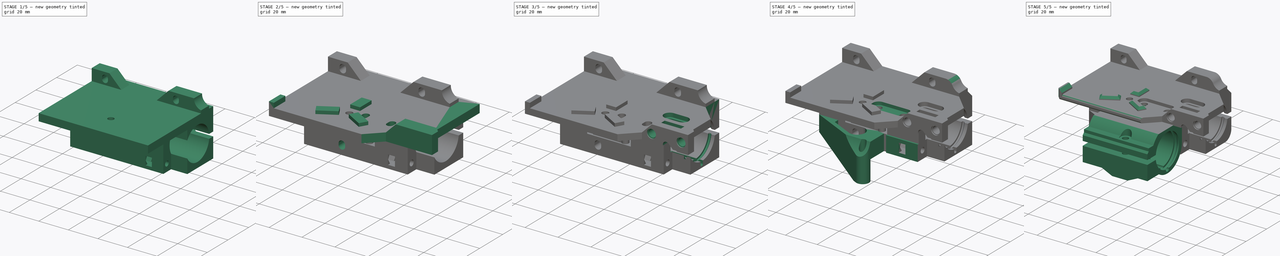
[diagram: build sequence overview — one tinted view per stage of 5, left to right]
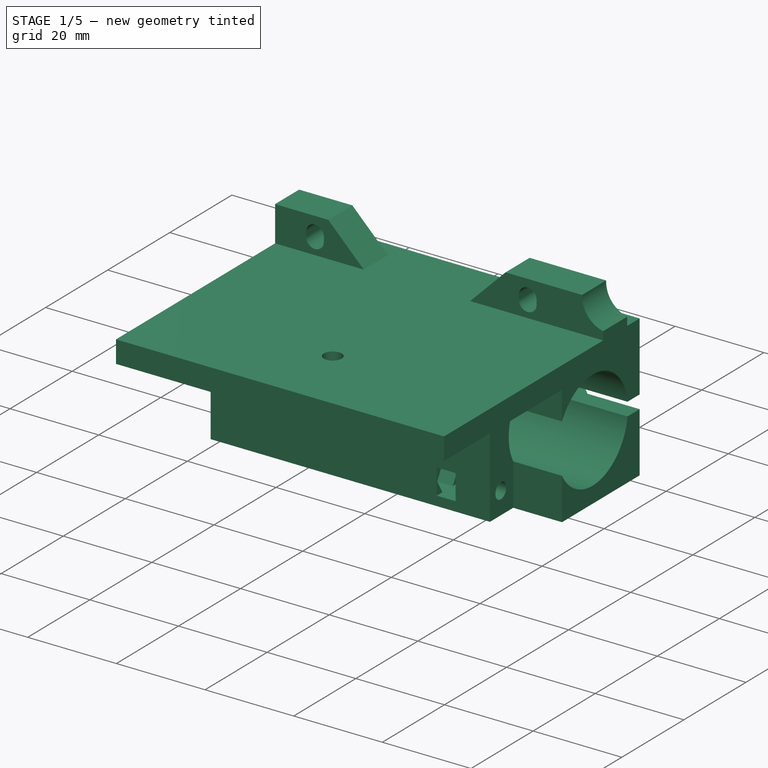
[diagram: stage 1 of 5 — iso view after this stage's code; geometry added in this stage tinted green]
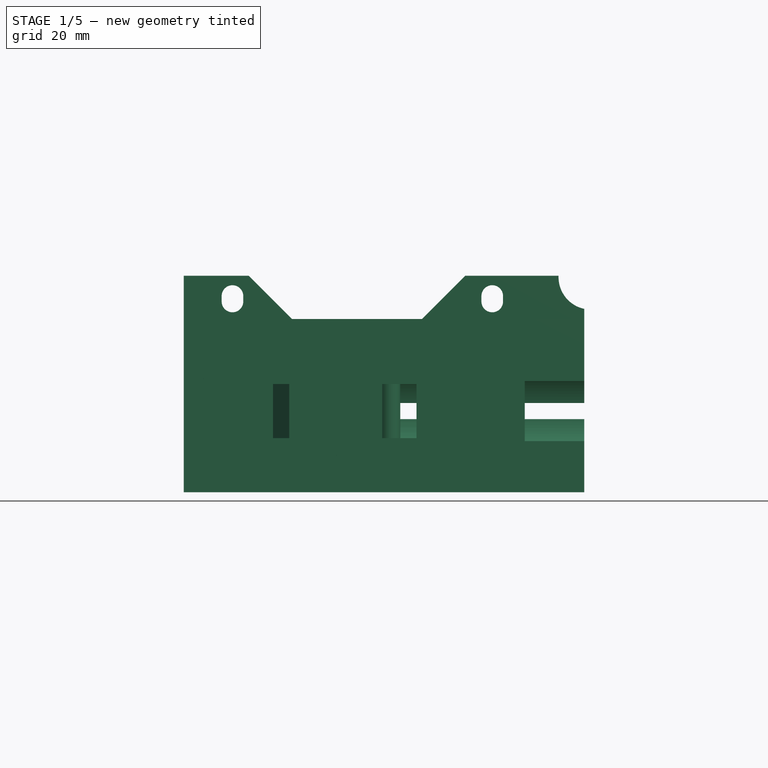
[diagram: stage 1 of 5 — front view after this stage's code; geometry added in this stage tinted green]
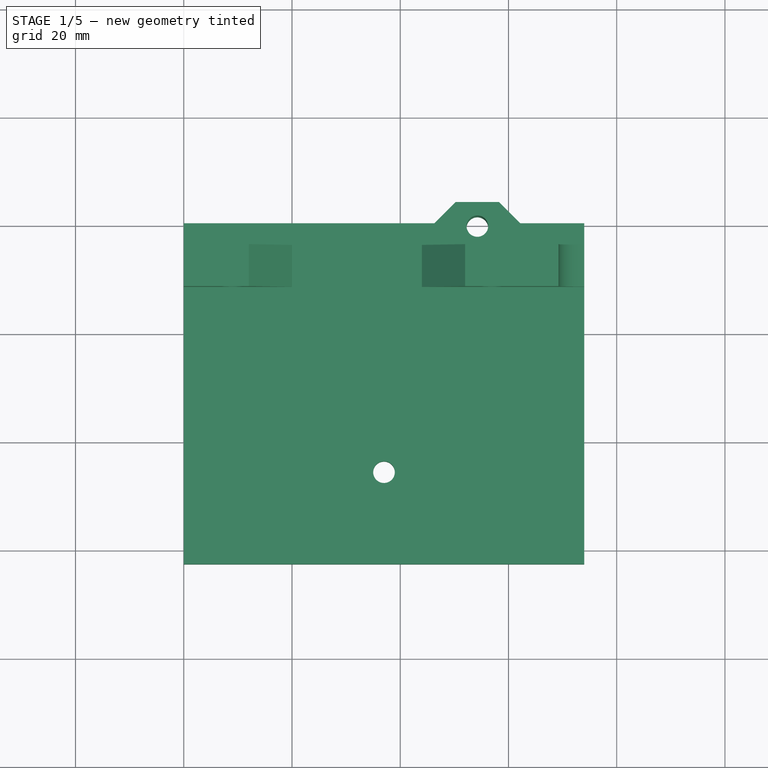
[diagram: stage 1 of 5 — top view after this stage's code; geometry added in this stage tinted green]
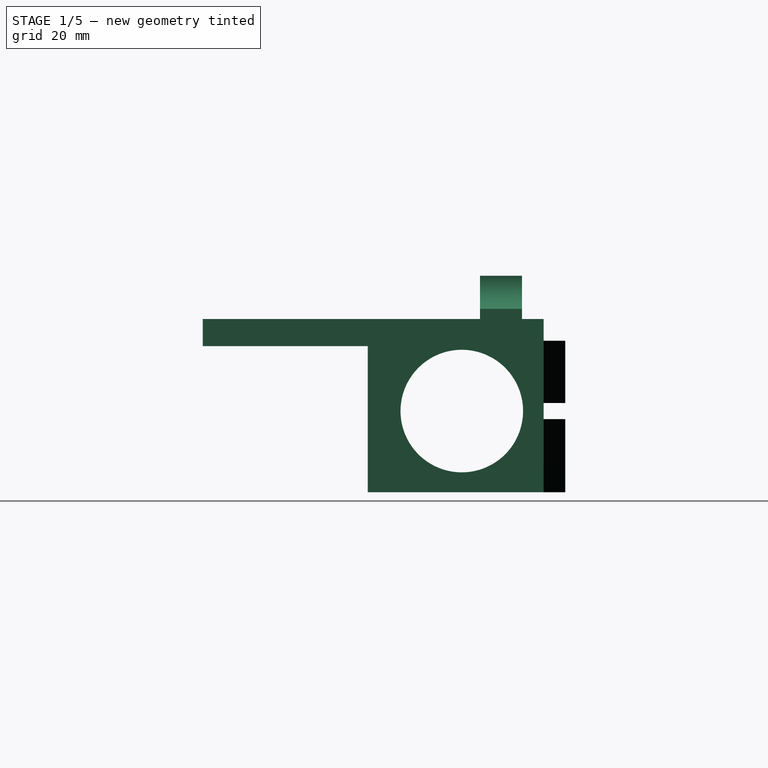
[diagram: stage 1 of 5 — right view after this stage's code; geometry added in this stage tinted green]
FCSTD DOCUMENT  (FreeCAD 0.18R4 (GitTag))
Label: x_carriage_v0.5.2
License: CreativeCommons Attribution-ShareAlike
LicenseURL: http://creativecommons.org/licenses/by-sa/4.0/
objects: Sketcher::SketchObject×48, PartDesign::Pocket×38, PartDesign::Pad×9, PartDesign::Fillet×7, PartDesign::Chamfer×7, App::FeaturePython×3, PartDesign::Groove×1, Part::FeaturePython×1, PartDesign::Body×1
note: 160 computed .brp shape members not serialized (recipe doc carries the construction recipe); baked Part::Feature solids carry a one-line shape summary decoded from their .brp

FEATURE [Sketcher::SketchObject] Sketch
  MapMode = 5
  Placement = pos=(0,0,0) rot=(0.57735,0.57735,0.57735;2.0944rad)
  Support = -> [YZ_Plane]
  sketch-geometry (11):
    g0: LineSegment StartX=4 StartY=-40 StartZ=0 EndX=4 EndY=-12 EndZ=0
    g1: LineSegment StartX=4 StartY=-12 StartZ=0 EndX=0 EndY=-12 EndZ=0
    g2: LineSegment StartX=0 StartY=-12 StartZ=0 EndX=0 EndY=0 EndZ=0
    g3: LineSegment StartX=0 StartY=0 StartZ=0 EndX=-11.75 EndY=0 EndZ=0
    g4: LineSegment StartX=-11.75 StartY=0 StartZ=0 EndX=-11.75 EndY=-8 EndZ=0
    g5: LineSegment StartX=-11.75 StartY=-8 StartZ=0 EndX=-63 EndY=-8 EndZ=0
    g6: LineSegment StartX=-63 StartY=-8 StartZ=0 EndX=-63 EndY=-13 EndZ=0
    g7: LineSegment StartX=-63 StartY=-13 StartZ=0 EndX=-32.5 EndY=-13 EndZ=0
    g8: LineSegment StartX=-32.5 StartY=-13 StartZ=0 EndX=-32.5 EndY=-40 EndZ=0
    g9: LineSegment StartX=-32.5 StartY=-40 StartZ=0 EndX=4 EndY=-40 EndZ=0
    g10: Circle CenterX=-15.125 CenterY=-25 CenterZ=0 NormalX=0 NormalY=0 NormalZ=1 AngleXU=0 Radius=11.325
  constraints (32):
    c: Coincident(g0,g1)
    c: Coincident(g1,g2)
    c: Coincident(g2,g3)
    c: Coincident(g3,g4)
    c: Coincident(g4,g5)
    c: Coincident(g5,g6)
    c: Coincident(g6,g7)
    c: Coincident(g0,g9)
    c: Coincident(g2,g-1)
    c: Horizontal(g3)
    c: Horizontal(g5)
    c: Horizontal(g7)
    c: Horizontal(g9)
    c: Horizontal(g1)
    c: Vertical(g2)
    c: Vertical(g4)
    c: Vertical(g0)
    c: Vertical(g6)
    c: Vertical(g8)
    c: DistanceX(g3,g3) = 11.75
    c: DistanceY(g4,g4) = 8
    c: DistanceX(g5,g5) = 51.25
    c: DistanceY(g6,g6) = 5
    c: DistanceY(g0,g0) = 28
    c: DistanceX(g10) = -15.125
    c: DistanceY(g10) = -25
    c: Radius(g10) = 11.325
    c: DistanceY(g0) = -40
    c: Coincident(g8,g9)
    c: DistanceX(g9,g9) = 36.5
    c: Coincident(g7,g8)
    c: DistanceX(g7,g7) = 30.5
FEATURE [PartDesign::Pad] Pad
  Length = 74
  Length2 = 100
  Placement = pos=(0,0,0) rot=(0.57735,0.57735,0.57735;2.0944rad)
  Profile = -> Sketch
  Type = 0
FEATURE [Sketcher::SketchObject] Sketch001
  MapMode = 5
  Placement = pos=(4.5164e-12,-4.512e-12,-40) rot=(0.707107,0.707107,0;3.14159rad)
  Support = -> [Pad]
  sketch-geometry (22):
    g0: Circle CenterX=-0.5 CenterY=54.25 CenterZ=0 NormalX=0 NormalY=0 NormalZ=1 AngleXU=0 Radius=2
    g1: ArcOfCircle [constr] CenterX=-50 CenterY=53.25 CenterZ=0 NormalX=0 NormalY=0 NormalZ=1 AngleXU=0 Radius=2 StartAngle=1.5708 EndAngle=4.71239
    g2: ArcOfCircle [constr] CenterX=-48 CenterY=53.25 CenterZ=0 NormalX=0 NormalY=0 NormalZ=1 AngleXU=0 Radius=2 StartAngle=4.71239 EndAngle=7.85398
    g3: LineSegment [constr] StartX=-50 StartY=51.25 StartZ=0 EndX=-48 EndY=51.25 EndZ=0
    g4: LineSegment [constr] StartX=-50 StartY=55.25 StartZ=0 EndX=-48 EndY=55.25 EndZ=0
    g5: ArcOfCircle [constr] CenterX=-50 CenterY=15 CenterZ=0 NormalX=0 NormalY=0 NormalZ=1 AngleXU=0 Radius=2 StartAngle=1.5708 EndAngle=4.71239
    g6: ArcOfCircle [constr] CenterX=-48 CenterY=15 CenterZ=0 NormalX=0 NormalY=0 NormalZ=1 AngleXU=0 Radius=2 StartAngle=4.71239 EndAngle=7.85398
    g7: LineSegment [constr] StartX=-50 StartY=13 StartZ=0 EndX=-48 EndY=13 EndZ=0
    g8: LineSegment [constr] StartX=-50 StartY=17 StartZ=0 EndX=-48 EndY=17 EndZ=0
    g9: Circle CenterX=-46 CenterY=37 CenterZ=0 NormalX=0 NormalY=0 NormalZ=1 AngleXU=0 Radius=2
    g10: LineSegment StartX=0 StartY=91.25 StartZ=0 EndX=4 EndY=91.25 EndZ=0
    g11: LineSegment StartX=4 StartY=91.25 StartZ=0 EndX=4 EndY=58.25 EndZ=0
    g12: LineSegment StartX=4 StartY=58.25 StartZ=0 EndX=0 EndY=62.25 EndZ=0
    g13: LineSegment StartX=0 StartY=62.25 StartZ=0 EndX=0 EndY=91.25 EndZ=0
    g14: LineSegment StartX=4 StartY=50.25 StartZ=0 EndX=0 EndY=46.25 EndZ=0
    g15: LineSegment StartX=0 StartY=46.25 StartZ=0 EndX=0 EndY=0 EndZ=0
    g16: LineSegment StartX=0 StartY=0 StartZ=0 EndX=4 EndY=0 EndZ=0
    g17: LineSegment StartX=4 StartY=0 StartZ=0 EndX=4 EndY=50.25 EndZ=0
    g18: LineSegment [constr] StartX=-50 StartY=53.25 StartZ=0 EndX=-48 EndY=53.25 EndZ=0
    g19: LineSegment [constr] StartX=-48 StartY=53.25 StartZ=0 EndX=-48 EndY=15 EndZ=0
    g20: LineSegment [constr] StartX=-48 StartY=15 StartZ=0 EndX=-50 EndY=15 EndZ=0
    g21: LineSegment [constr] StartX=-50 StartY=15 StartZ=0 EndX=-50 EndY=53.25 EndZ=0
  constraints (58):
    c: DistanceX(g0) = -0.5
    c: Radius(g0) = 2
    c: Tangent(g1,g4) = 1.5708
    c: Tangent(g1,g3) = -1.5708
    c: Tangent(g3,g2) = -1.5708
    c: Tangent(g4,g2) = 1.5708
    c: Horizontal(g3)
    c: Equal(g1,g2)
    c: Tangent(g5,g8) = 1.5708
    c: Tangent(g5,g7) = -1.5708
    c: Tangent(g7,g6) = -1.5708
    c: Tangent(g8,g6) = 1.5708
    c: Horizontal(g7)
    c: Equal(g5,g6)
    c: DistanceX(g9) = -46
    c: DistanceY(g9) = 37
    c: DistanceY(g2) = 53.25
    c: DistanceX(g4,g4) = 2
    c: Radius(g2) = 2
    c: DistanceX(g5) = -50
    c: DistanceY(g5) = 15
    c: DistanceX(g8,g8) = 2
    c: Radius(g6) = 2
    c: Coincident(g10,g11)
    c: Coincident(g11,g12)
    c: Coincident(g12,g13)
    c: Coincident(g13,g10)
    c: Horizontal(g10)
    c: Vertical(g11)
    c: Vertical(g13)
    c: Coincident(g14,g15)
    c: Coincident(g15,g16)
    c: Coincident(g16,g17)
    c: Coincident(g17,g14)
    c: Horizontal(g16)
    c: Vertical(g15)
    c: Vertical(g17)
    c: Coincident(g15,g-1)
    c: DistanceX(g12,g12) = 4
    c: Angle(g14) = -2.35619
    c: Angle(g12) = 2.35619
    c: PointOnObject(g10,g-2)
    c: DistanceX(g14,g14) = 4
    c: Equal(g9,g0)
    c: DistanceY(g14,g11) = 8
    c: DistanceY(g11,g11) = 33
    c: Coincident(g18,g19)
    c: Coincident(g19,g20)
    c: Coincident(g20,g21)
    c: Coincident(g21,g18)
    c: Horizontal(g18)
    c: Vertical(g19)
    c: Vertical(g21)
    c: Coincident(g5,g20)
    c: Coincident(g6,g19)
    c: Coincident(g1,g18)
    c: DistanceY(g0) = 54.25
    c: DistanceY(g0,g11) = 4
FEATURE [PartDesign::Pocket] Pocket
  BaseFeature = -> Pad
  Length = 5
  Length2 = 100
  Placement = pos=(0,0,0) rot=(0.57735,0.57735,0.57735;2.0944rad)
  Profile = -> Sketch001
  Type = 1
FEATURE [Sketcher::SketchObject] Sketch002
  MapMode = 5
  Placement = pos=(4.5164e-12,-4.512e-12,-40) rot=(0.707107,0.707107,0;3.14159rad)
  Support = -> [Pocket]
  sketch-geometry (4):
    g0: LineSegment StartX=-25 StartY=74 StartZ=0 EndX=-38 EndY=74 EndZ=0
    g1: LineSegment StartX=-38 StartY=74 StartZ=0 EndX=-38 EndY=63 EndZ=0
    g2: LineSegment StartX=-38 StartY=63 StartZ=0 EndX=-25 EndY=63 EndZ=0
    g3: LineSegment StartX=-25 StartY=63 StartZ=0 EndX=-25 EndY=74 EndZ=0
  constraints (12):
    c: Coincident(g0,g1)
    c: Coincident(g1,g2)
    c: Coincident(g2,g3)
    c: Vertical(g1)
    c: Horizontal(g2)
    c: Horizontal(g0)
    c: DistanceY(g0) = 74
    c: Vertical(g3)
    c: DistanceX(g0) = -38
    c: Coincident(g0,g3)
    c: DistanceX(g0,g0) = 13
    c: DistanceY(g3,g3) = 11
FEATURE [PartDesign::Pocket] Pocket001
  BaseFeature = -> Pocket
  Length = 27
  Length2 = 100
  Placement = pos=(0,0,0) rot=(0.57735,0.57735,0.57735;2.0944rad)
  Profile = -> Sketch002
  Type = 0
FEATURE [Sketcher::SketchObject] Sketch003
  MapMode = 5
  Placement = pos=(4.508e-13,4,-4.516e-13) rot=(0.57735,0.57735,0.57735;4.18879rad)
  Support = -> [Pocket001]
  sketch-geometry (4):
    g0: LineSegment StartX=-26.5 StartY=80 StartZ=0 EndX=-23.5 EndY=80 EndZ=0
    g1: LineSegment StartX=-23.5 StartY=80 StartZ=0 EndX=-23.5 EndY=20 EndZ=0
    g2: LineSegment StartX=-23.5 StartY=20 StartZ=0 EndX=-26.5 EndY=20 EndZ=0
    g3: LineSegment StartX=-26.5 StartY=20 StartZ=0 EndX=-26.5 EndY=80 EndZ=0
  constraints (12):
    c: Coincident(g0,g1)
    c: Coincident(g1,g2)
    c: Coincident(g2,g3)
    c: Coincident(g3,g0)
    c: Horizontal(g0)
    c: Horizontal(g2)
    c: Vertical(g1)
    c: Vertical(g3)
    c: DistanceX(g1) = -23.5
    c: DistanceX(g2,g2) = 3
    c: DistanceY(g1) = 20
    c: DistanceY(g1,g1) = 60
FEATURE [Sketcher::SketchObject] Sketch011
  MapMode = 5
  Placement = pos=(0,-1e-14,0) rot=(0.57735,0.57735,0.57735;4.18879rad)
  sketch-geometry (3):
    g0: LineSegment StartX=-40 StartY=40 StartZ=0 EndX=-40 EndY=0 EndZ=0
    g1: LineSegment StartX=-40 StartY=0 StartZ=0 EndX=-16.906 EndY=0 EndZ=0
    g2: LineSegment StartX=-40 StartY=40 StartZ=0 EndX=-16.906 EndY=0 EndZ=0
  constraints (9):
    c: PointOnObject(g1,g-1)
    c: Coincident(g0,g1)
    c: Horizontal(g1)
    c: Vertical(g0)
    c: DistanceY(g0,g0) = 40
    c: DistanceX(g0) = -40
    c: Angle(g2) = -1.0472
    c: Coincident(g0,g2)
    c: Coincident(g1,g2)
FEATURE [Sketcher::SketchObject] Sketch014
  MapMode = 5
  Placement = pos=(0,6e-15,0) rot=(0.57735,0.57735,0.57735;4.18879rad)
  sketch-geometry (21):
    g0: LineSegment StartX=0 StartY=52 StartZ=0 EndX=-8 EndY=44 EndZ=0
    g1: LineSegment StartX=-8 StartY=44 StartZ=0 EndX=-8 EndY=20 EndZ=0
    g2: LineSegment StartX=-8 StartY=20 StartZ=0 EndX=0 EndY=12 EndZ=0
    g3: LineSegment StartX=0 StartY=12 StartZ=0 EndX=0 EndY=52 EndZ=0
    g4: Circle [constr] CenterX=-4.25 CenterY=57 CenterZ=0 NormalX=0 NormalY=0 NormalZ=1 AngleXU=0 Radius=2
    g5: Circle [constr] CenterX=-4.25 CenterY=9 CenterZ=0 NormalX=0 NormalY=0 NormalZ=1 AngleXU=0 Radius=2
    g6: Circle CenterX=-0.25 CenterY=75.25 CenterZ=0 NormalX=0 NormalY=0 NormalZ=1 AngleXU=0 Radius=6
    g7: LineSegment [constr] StartX=-4.25 StartY=57 StartZ=0 EndX=-4.25 EndY=9 EndZ=0
    g8: Circle [constr] CenterX=-15.75 CenterY=19.5 CenterZ=0 NormalX=0 NormalY=0 NormalZ=1 AngleXU=0 Radius=2.35
    g9: ArcOfCircle CenterX=-4.75 CenterY=57 CenterZ=0 NormalX=0 NormalY=0 NormalZ=1 AngleXU=0 Radius=2 StartAngle=1.5708 EndAngle=4.71239
    g10: ArcOfCircle CenterX=-3.75 CenterY=57 CenterZ=0 NormalX=0 NormalY=0 NormalZ=1 AngleXU=0 Radius=2 StartAngle=4.71239 EndAngle=7.85398
    g11: LineSegment StartX=-4.75 StartY=55 StartZ=0 EndX=-3.75 EndY=55 EndZ=0
    g12: LineSegment StartX=-4.75 StartY=59 StartZ=0 EndX=-3.75 EndY=59 EndZ=0
    g13: LineSegment [constr] StartX=-4.75 StartY=57 StartZ=0 EndX=-3.75 EndY=57 EndZ=0
    g14: LineSegment [constr] StartX=-3.75 StartY=57 StartZ=0 EndX=-3.75 EndY=9 EndZ=0
    g15: LineSegment [constr] StartX=-3.75 StartY=9 StartZ=0 EndX=-4.75 EndY=9 EndZ=0
    g16: LineSegment [constr] StartX=-4.75 StartY=9 StartZ=0 EndX=-4.75 EndY=57 EndZ=0
    g17: ArcOfCircle CenterX=-4.75 CenterY=9 CenterZ=0 NormalX=0 NormalY=0 NormalZ=1 AngleXU=0 Radius=2 StartAngle=1.5708 EndAngle=4.71239
    g18: ArcOfCircle CenterX=-3.75 CenterY=9 CenterZ=0 NormalX=0 NormalY=0 NormalZ=1 AngleXU=0 Radius=2 StartAngle=4.71239 EndAngle=7.85398
    g19: LineSegment StartX=-4.75 StartY=7 StartZ=0 EndX=-3.75 EndY=7 EndZ=0
    g20: LineSegment StartX=-4.75 StartY=11 StartZ=0 EndX=-3.75 EndY=11 EndZ=0
  constraints (54):
    c: Coincident(g0,g1)
    c: Coincident(g1,g2)
    c: Coincident(g2,g3)
    c: DistanceX(g6) = -0.25
    c: Radius(g6) = 6
    c: DistanceX(g5) = -4.25
    c: DistanceY(g5) = 9
    c: Coincident(g5,g7)
    c: Coincident(g4,g7)
    c: Vertical(g7)
    c: Coincident(g0,g3)
    c: Vertical(g3)
    c: PointOnObject(g2,g-2)
    c: Radius(g5) = 2
    c: Equal(g4,g5)
    c: DistanceY(g7,g7) = 48
    c: DistanceY(g2) = 12
    c: DistanceY(g3,g3) = 40
    c: Angle(g0) = -2.35619
    c: Vertical(g1)
    c: DistanceX(g0,g0) = 8
    c: Angle(g2) = -0.785398
    c: DistanceX(g8) = -15.75
    c: Radius(g8) = 2.35
    c: DistanceY(g6) = 75.25
    c: DistanceY(g8) = 19.5
    c: Tangent(g9,g12) = 1.5708
    c: Tangent(g9,g11) = -1.5708
    c: Tangent(g11,g10) = -1.5708
    c: Tangent(g12,g10) = 1.5708
    c: Horizontal(g11)
    c: Equal(g9,g10)
    c: Coincident(g13,g14)
    c: Coincident(g14,g15)
    c: Coincident(g15,g16)
    c: Coincident(g16,g13)
    c: Horizontal(g15)
    c: Vertical(g14)
    c: Vertical(g16)
    c: PointOnObject(g5,g15)
    c: DistanceX(g5,g14) = 0.5
    c: PointOnObject(g4,g13)
    c: DistanceX(g13,g13) = 1
    c: Coincident(g9,g13)
    c: Coincident(g10,g13)
    c: Radius(g10) = 2
    c: Tangent(g17,g20) = 1.5708
    c: Tangent(g17,g19) = -1.5708
    c: Tangent(g19,g18) = -1.5708
    c: Tangent(g20,g18) = 1.5708
    c: Horizontal(g19)
    c: Coincident(g15,g17)
    c: Coincident(g18,g14)
    c: Equal(g17,g5)
FEATURE [Sketcher::SketchObject] Sketch016
  MapMode = 5
  Placement = pos=(-3.677e-12,-32.5,3.659e-12) rot=(0.57735,0.57735,-0.57735;2.0944rad)
  sketch-geometry (4):
    g0: ArcOfCircle CenterX=34 CenterY=23 CenterZ=0 NormalX=0 NormalY=0 NormalZ=1 AngleXU=0 Radius=2 StartAngle=1.5708 EndAngle=4.71239
    g1: ArcOfCircle CenterX=35 CenterY=23 CenterZ=0 NormalX=0 NormalY=0 NormalZ=1 AngleXU=0 Radius=2 StartAngle=4.71239 EndAngle=7.85398
    g2: LineSegment StartX=34 StartY=21 StartZ=0 EndX=35 EndY=21 EndZ=0
    g3: LineSegment StartX=34 StartY=25 StartZ=0 EndX=35 EndY=25 EndZ=0
  constraints (10):
    c: Tangent(g0,g3) = 1.5708
    c: Tangent(g0,g2) = -1.5708
    c: Tangent(g2,g1) = -1.5708
    c: Tangent(g3,g1) = 1.5708
    c: Horizontal(g2)
    c: Equal(g0,g1)
    c: DistanceX(g0) = 34
    c: DistanceX(g0,g1) = 1
    c: Radius(g1) = 2
    c: DistanceY(g0) = 23
FEATURE [Sketcher::SketchObject] Sketch019
  MapMode = 5
  Placement = pos=(8.87e-13,-9.02e-13,-8) rot=(0,0,-1;1.5708rad)
  sketch-geometry (16):
    g0: LineSegment [constr] StartX=41 StartY=45.6603 StartZ=0 EndX=41 EndY=28.3397 EndZ=0
    g1: LineSegment [constr] StartX=41 StartY=28.3397 StartZ=0 EndX=56 EndY=37 EndZ=0
    g2: LineSegment [constr] StartX=56 StartY=37 StartZ=0 EndX=41 EndY=45.6603 EndZ=0
    g3: Circle [constr] CenterX=46 CenterY=37 CenterZ=0 NormalX=0 NormalY=0 NormalZ=1 AngleXU=0 Radius=10
    g4: LineSegment StartX=41 StartY=40 StartZ=0 EndX=31 EndY=40 EndZ=0
    g5: LineSegment StartX=31 StartY=40 StartZ=0 EndX=31 EndY=34 EndZ=0
    g6: LineSegment StartX=31 StartY=34 StartZ=0 EndX=41 EndY=34 EndZ=0
    g7: LineSegment StartX=41 StartY=34 StartZ=0 EndX=41 EndY=40 EndZ=0
    g8: LineSegment StartX=46.2572 StartY=42.625 StartZ=0 EndX=52.1322 EndY=52.8008 EndZ=0
    g9: LineSegment StartX=52.1322 StartY=52.8008 StartZ=0 EndX=56.6788 EndY=50.1758 EndZ=0
    g10: LineSegment StartX=56.6788 StartY=50.1758 StartZ=0 EndX=50.8038 EndY=40 EndZ=0
    g11: LineSegment StartX=50.8038 StartY=40 StartZ=0 EndX=46.2572 EndY=42.625 EndZ=0
    g12: LineSegment StartX=46.2572 StartY=31.375 StartZ=0 EndX=52.1322 EndY=21.1992 EndZ=0
    g13: LineSegment StartX=52.1322 StartY=21.1992 StartZ=0 EndX=56.6788 EndY=23.8242 EndZ=0
    g14: LineSegment StartX=56.6788 StartY=23.8242 StartZ=0 EndX=50.8038 EndY=34 EndZ=0
    g15: LineSegment StartX=50.8038 StartY=34 StartZ=0 EndX=46.2572 EndY=31.375 EndZ=0
  constraints (48):
    c: Coincident(g0,g1)
    c: Coincident(g1,g2)
    c: Coincident(g2,g0)
    c: Equal(g0,g1)
    c: Equal(g0,g2)
    c: PointOnObject(g0,g3)
    c: PointOnObject(g1,g3)
    c: PointOnObject(g2,g3)
    c: Vertical(g0)
    c: DistanceX(g3) = 46
    c: DistanceY(g3) = 37
    c: Radius(g3) = 10
    c: Coincident(g4,g5)
    c: Coincident(g5,g6)
    c: Coincident(g6,g7)
    c: Coincident(g7,g4)
    c: Horizontal(g4)
    c: Horizontal(g6)
    c: Vertical(g5)
    c: Vertical(g7)
    c: Coincident(g8,g9)
    c: Coincident(g9,g10)
    c: Coincident(g10,g11)
    c: Coincident(g11,g8)
    c: Coincident(g12,g13)
    c: Coincident(g13,g14)
    c: Coincident(g14,g15)
    c: Coincident(g15,g12)
    c: PointOnObject(g10,g2)
    c: PointOnObject(g8,g2)
    c: PointOnObject(g12,g1)
    c: PointOnObject(g14,g1)
    c: Angle(g12) = -1.0472
    c: Parallel(g14,g12)
    c: Perpendicular(g13,g14)
    c: Perpendicular(g10,g11)
    c: Perpendicular(g9,g10)
    c: Perpendicular(g8,g9)
    c: Distance(g11) = 5.25
    c: Distance(g10,g1) = 6
    c: Distance(g10) = 11.75
    c: Distance(g14,g1) = 6
    c: Equal(g13,g9)
    c: Equal(g14,g10)
    c: PointOnObject(g4,g0)
    c: DistanceY(g7,g7) = 6
    c: DistanceY(g3,g4) = 3
    c: DistanceX(g4,g4) = 10
FEATURE [Sketcher::SketchObject] Sketch020
  MapMode = 5
  Placement = pos=(5.4e-14,-2.1e-14,-8) rot=(0,0,-1;1.5708rad)
  sketch-geometry (12):
    g0: ArcOfCircle CenterX=43.375 CenterY=45.25 CenterZ=0 NormalX=0 NormalY=0 NormalZ=1 AngleXU=0 Radius=2 StartAngle=1.5708 EndAngle=4.71239
    g1: ArcOfCircle CenterX=45.375 CenterY=45.25 CenterZ=0 NormalX=0 NormalY=0 NormalZ=1 AngleXU=0 Radius=2 StartAngle=4.71239 EndAngle=7.85398
    g2: LineSegment StartX=43.375 StartY=43.25 StartZ=0 EndX=45.375 EndY=43.25 EndZ=0
    g3: LineSegment StartX=43.375 StartY=47.25 StartZ=0 EndX=45.375 EndY=47.25 EndZ=0
    g4: ArcOfCircle CenterX=43.375 CenterY=61.25 CenterZ=0 NormalX=0 NormalY=0 NormalZ=1 AngleXU=0 Radius=2 StartAngle=1.5708 EndAngle=4.71239
    g5: ArcOfCircle CenterX=45.375 CenterY=61.25 CenterZ=0 NormalX=0 NormalY=0 NormalZ=1 AngleXU=0 Radius=2 StartAngle=4.71239 EndAngle=7.85398
    g6: LineSegment StartX=43.375 StartY=59.25 StartZ=0 EndX=45.375 EndY=59.25 EndZ=0
    g7: LineSegment StartX=43.375 StartY=63.25 StartZ=0 EndX=45.375 EndY=63.25 EndZ=0
    g8: LineSegment [constr] StartX=43.375 StartY=61.25 StartZ=0 EndX=45.375 EndY=61.25 EndZ=0
    g9: LineSegment [constr] StartX=45.375 StartY=61.25 StartZ=0 EndX=45.375 EndY=45.25 EndZ=0
    g10: LineSegment [constr] StartX=45.375 StartY=45.25 StartZ=0 EndX=43.375 EndY=45.25 EndZ=0
    g11: LineSegment [constr] StartX=43.375 StartY=45.25 StartZ=0 EndX=43.375 EndY=61.25 EndZ=0
  constraints (29):
    c: Tangent(g0,g3) = 1.5708
    c: Tangent(g0,g2) = -1.5708
    c: Tangent(g2,g1) = -1.5708
    c: Tangent(g3,g1) = 1.5708
    c: Horizontal(g2)
    c: Equal(g0,g1)
    c: Tangent(g4,g7) = 1.5708
    c: Tangent(g4,g6) = -1.5708
    c: Tangent(g6,g5) = -1.5708
    c: Tangent(g7,g5) = 1.5708
    c: Horizontal(g6)
    c: Equal(g4,g5)
    c: Equal(g5,g1)
    c: Radius(g1) = 2
    c: DistanceX(g4,g5) = 2
    c: DistanceX(g0,g1) = 2
    c: DistanceX(g4) = 43.375
    c: DistanceY(g4) = 61.25
    c: Coincident(g8,g9)
    c: Coincident(g9,g10)
    c: Coincident(g11,g8)
    c: Horizontal(g10)
    c: Vertical(g9)
    c: Vertical(g11)
    c: Coincident(g5,g8)
    c: Coincident(g4,g8)
    c: Coincident(g0,g11)
    c: Coincident(g10,g0)
    c: DistanceY(g9,g9) = 16
FEATURE [App::FeaturePython] circularEdgeConstraint01_mirror  label="circularEdgeConstraint01__x_carriage_v4_1_6_01"  # a2plus constraint (typed FeaturePython)
  Object1 = x_carriage_v4_1_6_01
  Object2 = x_carriage_v4_1_6_mir_01
  SubElement1 = Edge200
  SubElement2 = Edge28
  Type = circularEdge
  directionConstraint = 1
  lockRotation = false
  offset = 0
FEATURE [App::FeaturePython] circularEdgeConstraint02_mirror  label="circularEdgeConstraint02__Minii_x_carriage_V2_1_01"  # a2plus constraint (typed FeaturePython)
  Object1 = Minii_x_carriage_V2_1_01
  Object2 = Pad002
  SubElement1 = Edge247
  SubElement2 = Edge357
  Type = circularEdge
  directionConstraint = 1
  lockRotation = false
  offset = 0
FEATURE [App::FeaturePython] circularEdgeConstraint02_mirror001  label="circularEdgeConstraint02__Beefy_extruder_mount_v2_2_01"  # a2plus constraint (typed FeaturePython)
  Object1 = Beefy_extruder_mount_v2_2_01
  Object2 = Pad002
  SubElement1 = Edge187
  SubElement2 = Edge268
  Type = circularEdge
  directionConstraint = 0
  lockRotation = false
  offset = 0
FEATURE [Sketcher::SketchObject] Sketch022
  MapMode = 5
  Placement = pos=(4.432e-12,-4.512e-12,-40) rot=(0.707107,0.707107,0;3.14159rad)
  sketch-geometry (1):
    g0: Circle CenterX=-27.25 CenterY=36.5 CenterZ=0 NormalX=0 NormalY=0 NormalZ=1 AngleXU=0 Radius=2.35
  constraints (3):
    c: DistanceX(g0) = -27.25
    c: DistanceY(g0) = 36.5
    c: Radius(g0) = 2.35
FEATURE [Sketcher::SketchObject] Sketch023
  MapMode = 5
  Placement = pos=(-1.03e-13,0,0) rot=(0.57735,0.57735,-0.57735;4.18879rad)
  sketch-geometry (4):
    g0: LineSegment StartX=-63 StartY=8 StartZ=0 EndX=-53 EndY=8 EndZ=0
    g1: LineSegment StartX=-53 StartY=8 StartZ=0 EndX=-53 EndY=5 EndZ=0
    g2: LineSegment StartX=-53 StartY=5 StartZ=0 EndX=-63 EndY=5 EndZ=0
    g3: LineSegment StartX=-63 StartY=5 StartZ=0 EndX=-63 EndY=8 EndZ=0
  constraints (12):
    c: Coincident(g0,g1)
    c: Coincident(g1,g2)
    c: Coincident(g2,g3)
    c: Coincident(g3,g0)
    c: Horizontal(g0)
    c: Horizontal(g2)
    c: Vertical(g1)
    c: Vertical(g3)
    c: DistanceX(g0,g0) = 10
    c: DistanceY(g1,g1) = 3
    c: DistanceX(g0) = -63
    c: DistanceY(g0) = 8
FEATURE [Sketcher::SketchObject] Sketch026
  MapMode = 5
  Placement = pos=(9.03e-13,-9.02e-13,-8) rot=(0,0,-1;1.5708rad)
  sketch-geometry (8):
    g0: LineSegment StartX=20 StartY=65 StartZ=0 EndX=63 EndY=65 EndZ=0
    g1: LineSegment StartX=63 StartY=65 StartZ=0 EndX=63 EndY=93 EndZ=0
    g2: LineSegment StartX=63 StartY=93 StartZ=0 EndX=49 EndY=93 EndZ=0
    g3: LineSegment StartX=49 StartY=93 StartZ=0 EndX=40 EndY=84 EndZ=0
    g4: LineSegment StartX=40 StartY=84 StartZ=0 EndX=0 EndY=84 EndZ=0
    g5: LineSegment StartX=0 StartY=84 StartZ=0 EndX=0 EndY=74 EndZ=0
    g6: LineSegment StartX=0 StartY=74 StartZ=0 EndX=20 EndY=74 EndZ=0
    g7: LineSegment StartX=20 StartY=74 StartZ=0 EndX=20 EndY=65 EndZ=0
  constraints (24):
    c: Coincident(g0,g1)
    c: Coincident(g1,g2)
    c: Horizontal(g0)
    c: Horizontal(g2)
    c: Vertical(g1)
    c: DistanceY(g0) = 65
    c: DistanceX(g0) = 63
    c: DistanceX(g2,g2) = 14
    c: DistanceY(g1,g1) = 28
    c: Coincident(g2,g3)
    c: Coincident(g3,g4)
    c: PointOnObject(g4,g-2)
    c: Horizontal(g4)
    c: Coincident(g4,g5)
    c: PointOnObject(g5,g-2)
    c: Coincident(g5,g6)
    c: Horizontal(g6)
    c: Coincident(g6,g7)
    c: Coincident(g7,g0)
    c: Vertical(g7)
    c: DistanceY(g5) = 74
    c: DistanceX(g6,g6) = 20
    c: Angle(g3,g4) = 2.35619
    c: DistanceY(g5,g5) = 10
FEATURE [Sketcher::SketchObject] Sketch031
  MapMode = 5
  Placement = pos=(4.392e-12,-4.512e-12,-40) rot=(0.707107,0.707107,0;3.14159rad)
  sketch-geometry (1):
    g0: Circle CenterX=-27.25 CenterY=36.5 CenterZ=0 NormalX=0 NormalY=0 NormalZ=1 AngleXU=0 Radius=2.75
  constraints (1):
    c: Radius(g0) = 2.75
FEATURE [Sketcher::SketchObject] Sketch035
  MapMode = 5
  Placement = pos=(2.26e-13,-2.26e-13,-2) rot=(0,0,-1;1.5708rad)
  sketch-geometry (4):
    g0: LineSegment StartX=54.25 StartY=93 StartZ=0 EndX=63 EndY=93 EndZ=0
    g1: LineSegment StartX=63 StartY=93 StartZ=0 EndX=63 EndY=56.25 EndZ=0
    g2: LineSegment StartX=63 StartY=56.25 StartZ=0 EndX=54.25 EndY=65 EndZ=0
    g3: LineSegment StartX=54.25 StartY=65 StartZ=0 EndX=54.25 EndY=93 EndZ=0
  constraints (12):
    c: Coincident(g0,g1)
    c: Coincident(g1,g2)
    c: Coincident(g2,g3)
    c: Coincident(g3,g0)
    c: Horizontal(g0)
    c: Vertical(g1)
    c: Vertical(g3)
    c: DistanceX(g0) = 63
    c: DistanceY(g0) = 93
    c: DistanceX(g0,g0) = 8.75
    c: DistanceY(g3,g3) = 28
    c: Angle(g2) = 2.35619
FEATURE [Sketcher::SketchObject] Sketch036
  MapMode = 5
  Placement = pos=(-6.122e-12,-54.25,6.137e-12) rot=(0.57735,0.57735,-0.57735;2.0944rad)
  sketch-geometry (3):
    g0: LineSegment StartX=8 StartY=65 StartZ=0 EndX=2 EndY=71 EndZ=0
    g1: LineSegment StartX=2 StartY=71 StartZ=0 EndX=2 EndY=65 EndZ=0
    g2: LineSegment StartX=2 StartY=65 StartZ=0 EndX=8 EndY=65 EndZ=0
  constraints (9):
    c: Coincident(g0,g1)
    c: Vertical(g1)
    c: Coincident(g1,g2)
    c: Coincident(g2,g0)
    c: Horizontal(g2)
    c: DistanceX(g0) = 8
    c: DistanceY(g0) = 65
    c: Equal(g2,g1)
    c: DistanceY(g1,g1) = 6
FEATURE [Sketcher::SketchObject] Sketch037
  MapMode = 5
  Placement = pos=(1.478e-12,-1.468e-12,-13) rot=(0.707107,0.707107,0;3.14159rad)
  sketch-geometry (16):
    g0: LineSegment [constr] StartX=-54.25 StartY=82.75 StartZ=0 EndX=-31.25 EndY=82.75 EndZ=0
    g1: LineSegment [constr] StartX=-31.25 StartY=82.75 StartZ=0 EndX=-31.25 EndY=76.75 EndZ=0
    g2: LineSegment [constr] StartX=-31.25 StartY=76.75 StartZ=0 EndX=-54.25 EndY=76.75 EndZ=0
    g3: LineSegment [constr] StartX=-54.25 StartY=76.75 StartZ=0 EndX=-54.25 EndY=82.75 EndZ=0
    g4: LineSegment StartX=-50 StartY=85.75 StartZ=0 EndX=-47 EndY=85.75 EndZ=0
    g5: LineSegment StartX=-47 StartY=85.75 StartZ=0 EndX=-47 EndY=83.75 EndZ=0
    g6: LineSegment StartX=-47 StartY=83.75 StartZ=0 EndX=-50 EndY=83.75 EndZ=0
    g7: LineSegment StartX=-50 StartY=83.75 StartZ=0 EndX=-50 EndY=85.75 EndZ=0
    g8: LineSegment StartX=-50 StartY=75.75 StartZ=0 EndX=-47 EndY=75.75 EndZ=0
    g9: LineSegment StartX=-47 StartY=75.75 StartZ=0 EndX=-47 EndY=73.75 EndZ=0
    g10: LineSegment StartX=-47 StartY=73.75 StartZ=0 EndX=-50 EndY=73.75 EndZ=0
    g11: LineSegment StartX=-50 StartY=73.75 StartZ=0 EndX=-50 EndY=75.75 EndZ=0
    g12: LineSegment [constr] StartX=-50 StartY=83.75 StartZ=0 EndX=-47 EndY=83.75 EndZ=0
    g13: LineSegment [constr] StartX=-47 StartY=83.75 StartZ=0 EndX=-47 EndY=75.75 EndZ=0
    g14: LineSegment [constr] StartX=-47 StartY=75.75 StartZ=0 EndX=-50 EndY=75.75 EndZ=0
    g15: LineSegment [constr] StartX=-50 StartY=75.75 StartZ=0 EndX=-50 EndY=83.75 EndZ=0
  constraints (45):
    c: Coincident(g0,g1)
    c: Coincident(g1,g2)
    c: Coincident(g2,g3)
    c: Coincident(g3,g0)
    c: Horizontal(g0)
    c: Horizontal(g2)
    c: Vertical(g1)
    c: Vertical(g3)
    c: DistanceX(g2) = -54.25
    c: DistanceY(g3,g3) = 6
    c: DistanceX(g0,g0) = 23
    c: Coincident(g4,g5)
    c: Coincident(g5,g6)
    c: Coincident(g6,g7)
    c: Coincident(g7,g4)
    c: Horizontal(g4)
    c: Horizontal(g6)
    c: Vertical(g5)
    c: Vertical(g7)
    c: Coincident(g8,g9)
    c: Coincident(g9,g10)
    c: Coincident(g10,g11)
    c: Coincident(g11,g8)
    c: Horizontal(g8)
    c: Horizontal(g10)
    c: Vertical(g9)
    c: Vertical(g11)
    c: Equal(g6,g8)
    c: Equal(g11,g7)
    c: Coincident(g12,g13)
    c: Coincident(g13,g14)
    c: Coincident(g14,g15)
    c: Coincident(g15,g12)
    c: Horizontal(g14)
    c: Vertical(g13)
    c: Vertical(g15)
    c: Coincident(g8,g14)
    c: Coincident(g5,g12)
    c: Coincident(g6,g12)
    c: DistanceX(g4,g4) = 3
    c: DistanceY(g5,g5) = 2
    c: DistanceY(g8,g2) = 1
    c: DistanceY(g0,g5) = 1
    c: DistanceX(g6) = -50
    c: DistanceY(g2) = 76.75
FEATURE [Sketcher::SketchObject] Sketch038
  MapMode = 5
  Placement = pos=(2.28e-13,-2.26e-13,-2) rot=(0,0,-1;1.5708rad)
  sketch-geometry (6):
    g0: LineSegment StartX=46 StartY=90 StartZ=0 EndX=46 EndY=65 EndZ=0
    g1: LineSegment StartX=46 StartY=65 StartZ=0 EndX=20 EndY=65 EndZ=0
    g2: LineSegment StartX=20 StartY=65 StartZ=0 EndX=20 EndY=74 EndZ=0
    g3: LineSegment StartX=20 StartY=74 StartZ=0 EndX=0 EndY=74 EndZ=0
    g4: LineSegment StartX=0 StartY=74 StartZ=0 EndX=0 EndY=90 EndZ=0
    g5: LineSegment StartX=0 StartY=90 StartZ=0 EndX=46 EndY=90 EndZ=0
  constraints (18):
    c: Vertical(g0)
    c: Horizontal(g1)
    c: DistanceX(g1) = 20
    c: DistanceY(g1) = 65
    c: DistanceY(g1,g0) = 25
    c: Coincident(g0,g1)
    c: Coincident(g1,g2)
    c: Vertical(g2)
    c: Coincident(g2,g3)
    c: PointOnObject(g3,g-2)
    c: Horizontal(g3)
    c: Coincident(g3,g4)
    c: PointOnObject(g4,g-2)
    c: Coincident(g4,g5)
    c: Coincident(g5,g0)
    c: Horizontal(g5)
    c: DistanceY(g2,g2) = 9
    c: DistanceX(g1,g1) = 26
FEATURE [Sketcher::SketchObject] Sketch039
  MapMode = 5
  Placement = pos=(-5.651e-12,-50,5.649e-12) rot=(0.57735,0.57735,0.57735;4.18879rad)
  sketch-geometry (8):
    g0: LineSegment StartX=-11 StartY=85.75 StartZ=0 EndX=-2 EndY=85.75 EndZ=0
    g1: LineSegment StartX=-2 StartY=85.75 StartZ=0 EndX=-2 EndY=73.75 EndZ=0
    g2: LineSegment StartX=-2 StartY=73.75 StartZ=0 EndX=-11 EndY=73.75 EndZ=0
    g3: LineSegment StartX=-11 StartY=73.75 StartZ=0 EndX=-11 EndY=75.75 EndZ=0
    g4: LineSegment StartX=-11 StartY=75.75 StartZ=0 EndX=-4 EndY=75.75 EndZ=0
    g5: LineSegment StartX=-4 StartY=75.75 StartZ=0 EndX=-4 EndY=83.75 EndZ=0
    g6: LineSegment StartX=-4 StartY=83.75 StartZ=0 EndX=-11 EndY=83.75 EndZ=0
    g7: LineSegment StartX=-11 StartY=83.75 StartZ=0 EndX=-11 EndY=85.75 EndZ=0
  constraints (24):
    c: Horizontal(g0)
    c: Coincident(g0,g1)
    c: Vertical(g1)
    c: Coincident(g1,g2)
    c: Horizontal(g2)
    c: Coincident(g2,g3)
    c: Vertical(g3)
    c: Coincident(g3,g4)
    c: Coincident(g4,g5)
    c: Vertical(g5)
    c: Coincident(g5,g6)
    c: Coincident(g6,g7)
    c: Coincident(g7,g0)
    c: Vertical(g7)
    c: Horizontal(g4)
    c: DistanceX(g2) = -11
    c: DistanceY(g2) = 73.75
    c: DistanceY(g3,g3) = 2
    c: Equal(g3,g7)
    c: Horizontal(g6)
    c: DistanceY(g5,g5) = 8
    c: Equal(g6,g4)
    c: DistanceX(g0,g0) = 9
    c: DistanceX(g6,g6) = 7
FEATURE [Sketcher::SketchObject] Sketch042
  MapMode = 5
  Placement = pos=(-6.137e-12,-54.25,6.125e-12) rot=(0.57735,0.57735,-0.57735;2.0944rad)
  sketch-geometry (3):
    g0: Circle CenterX=7.25 CenterY=88.75 CenterZ=0 NormalX=0 NormalY=0 NormalZ=1 AngleXU=0 Radius=2.75
    g1: Circle CenterX=7.25 CenterY=70.75 CenterZ=0 NormalX=0 NormalY=0 NormalZ=1 AngleXU=0 Radius=2.75
    g2: LineSegment [constr] StartX=7.25 StartY=88.75 StartZ=0 EndX=7.25 EndY=70.75 EndZ=0
  constraints (8):
    c: Radius(g1) = 2.75
    c: Equal(g1,g0)
    c: Coincident(g2,g0)
    c: Coincident(g2,g1)
    c: Vertical(g2)
    c: DistanceX(g0) = 7.25
    c: DistanceY(g0) = 88.75
    c: DistanceY(g2,g2) = 18
FEATURE [PartDesign::Pocket] Pocket002
  BaseFeature = -> Pocket001
  Length = 11
  Length2 = 100
  Placement = pos=(0,0,0) rot=(0.57735,0.57735,0.57735;2.0944rad)
  Profile = -> Sketch003
  Refine = true
  Type = 0
FEATURE [Sketcher::SketchObject] Sketch004
  MapMode = 5
  Placement = pos=(-3.6624e-12,-32.5,3.6696e-12) rot=(0.57735,0.57735,-0.57735;2.0944rad)
  Support = -> [Pocket002]
  sketch-geometry (4):
    g0: LineSegment StartX=32.125 StartY=55.25 StartZ=0 EndX=37.875 EndY=55.25 EndZ=0
    g1: LineSegment StartX=37.875 StartY=55.25 StartZ=0 EndX=37.875 EndY=51 EndZ=0
    g2: LineSegment StartX=32.125 StartY=55.25 StartZ=0 EndX=32.125 EndY=51 EndZ=0
    g3: LineSegment StartX=32.125 StartY=51 StartZ=0 EndX=37.875 EndY=51 EndZ=0
  constraints (12):
    c: Coincident(g0,g1)
    c: Horizontal(g0)
    c: Vertical(g1)
    c: DistanceX(g1) = 37.875
    c: DistanceY(g1) = 51
    c: DistanceX(g0,g0) = 5.75
    c: DistanceY(g1,g1) = 4.25
    c: Coincident(g1,g3)
    c: Coincident(g2,g3)
    c: Horizontal(g3)
    c: Vertical(g2)
    c: Coincident(g0,g2)
FEATURE [PartDesign::Pocket] Pocket003
  BaseFeature = -> Pocket002
  Length = 7.5
  Length2 = 100
  Placement = pos=(0,0,0) rot=(0.57735,0.57735,0.57735;2.0944rad)
  Profile = -> Sketch004
  Refine = true
  Type = 0
FEATURE [Sketcher::SketchObject] Sketch005
  MapMode = 5
  Placement = pos=(74,-8.3323e-12,8.3487e-12) rot=(0.57735,0.57735,0.57735;2.0944rad)
  Support = -> [Pocket003]
  sketch-geometry (2):
    g0: Circle [constr] CenterX=-29 CenterY=-17 CenterZ=0 NormalX=0 NormalY=0 NormalZ=1 AngleXU=0 Radius=1.75
    g1: Circle CenterX=-29 CenterY=-35 CenterZ=0 NormalX=0 NormalY=0 NormalZ=1 AngleXU=0 Radius=1.75
  constraints (6):
    c: DistanceX(g0) = -29
    c: DistanceY(g0) = -17
    c: DistanceX(g1,g0) = 0
    c: DistanceY(g1,g0) = 18
    c: Radius(g1) = 1.75
    c: Equal(g1,g0)
FEATURE [PartDesign::Pocket] Pocket004
  BaseFeature = -> Pocket003
  Length = 30
  Length2 = 100
  Placement = pos=(0,0,0) rot=(0.57735,0.57735,0.57735;2.0944rad)
  Profile = -> Sketch005
  Refine = true
  Type = 0
FEATURE [Sketcher::SketchObject] Sketch006
  MapMode = 5
  Placement = pos=(44,-4.9935e-12,4.9469e-12) rot=(0.57735,0.57735,0.57735;2.0944rad)
  Support = -> [Pocket004]
  sketch-geometry (14):
    g0: LineSegment [constr] StartX=-25.65 StartY=-17 StartZ=0 EndX=-27.325 EndY=-14.0988 EndZ=0
    g1: LineSegment [constr] StartX=-27.325 StartY=-14.0988 StartZ=0 EndX=-30.675 EndY=-14.0988 EndZ=0
    g2: LineSegment [constr] StartX=-30.675 StartY=-14.0988 StartZ=0 EndX=-32.35 EndY=-17 EndZ=0
    g3: LineSegment [constr] StartX=-32.35 StartY=-17 StartZ=0 EndX=-30.675 EndY=-19.9012 EndZ=0
    g4: LineSegment [constr] StartX=-30.675 StartY=-19.9012 StartZ=0 EndX=-27.325 EndY=-19.9012 EndZ=0
    g5: LineSegment [constr] StartX=-27.325 StartY=-19.9012 StartZ=0 EndX=-25.65 EndY=-17 EndZ=0
    g6: Circle [constr] CenterX=-29 CenterY=-17 CenterZ=0 NormalX=0 NormalY=0 NormalZ=1 AngleXU=0 Radius=3.35
    g7: LineSegment StartX=-25.65 StartY=-35 StartZ=0 EndX=-27.325 EndY=-32.0988 EndZ=0
    g8: LineSegment StartX=-27.325 StartY=-32.0988 StartZ=0 EndX=-30.675 EndY=-32.0988 EndZ=0
    g9: LineSegment StartX=-30.675 StartY=-32.0988 StartZ=0 EndX=-32.35 EndY=-35 EndZ=0
    g10: LineSegment StartX=-32.35 StartY=-35 StartZ=0 EndX=-30.675 EndY=-37.9012 EndZ=0
    g11: LineSegment StartX=-30.675 StartY=-37.9012 StartZ=0 EndX=-27.325 EndY=-37.9012 EndZ=0
    g12: LineSegment StartX=-27.325 StartY=-37.9012 StartZ=0 EndX=-25.65 EndY=-35 EndZ=0
    g13: Circle [constr] CenterX=-29 CenterY=-35 CenterZ=0 NormalX=0 NormalY=0 NormalZ=1 AngleXU=0 Radius=3.35
  constraints (34):
    c: Coincident(g0,g1)
    c: Coincident(g1,g2)
    c: Coincident(g2,g3)
    c: Coincident(g3,g4)
    c: Coincident(g4,g5)
    c: Coincident(g5,g0)
    c: Equal(g0, g1-g5) x5
    c: PointOnObject(g0,g6)
    c: PointOnObject(g1,g6)
    c: PointOnObject(g2,g6)
    c: PointOnObject(g3,g6)
    c: PointOnObject(g4,g6)
    c: PointOnObject(g5,g6)
    c: Coincident(g7,g8)
    c: Coincident(g8,g9)
    c: Coincident(g9,g10)
    c: Coincident(g10,g11)
    c: Coincident(g11,g12)
    c: Coincident(g12,g7)
    c: Equal(g7, g8-g12) x5
    c: PointOnObject(g7,g13)
    c: PointOnObject(g8,g13)
    c: PointOnObject(g9,g13)
    c: PointOnObject(g10,g13)
    c: PointOnObject(g11,g13)
    c: PointOnObject(g12,g13)
    c: DistanceX(g6) = -29
    c: DistanceY(g6) = -17
    c: Horizontal(g1)
    c: Radius(g6) = 3.35
    c: DistanceX(g13,g6) = 0
    c: DistanceY(g13,g6) = 18
    c: Equal(g13,g6)
    c: Horizontal(g8)
FEATURE [PartDesign::Pocket] Pocket005
  BaseFeature = -> Pocket004
  Length = 3
  Length2 = 7
  Placement = pos=(0,0,0) rot=(0.57735,0.57735,0.57735;2.0944rad)
  Profile = -> Sketch006
  Refine = true
  Type = 4
FEATURE [Sketcher::SketchObject] Sketch008
  MapMode = 5
  Placement = pos=(4.5164e-12,-4.512e-12,-40) rot=(0.707107,0.707107,0;3.14159rad)
  Support = -> [Pocket005]
  sketch-geometry (7):
    g0: LineSegment StartX=-3.40119 StartY=52.575 StartZ=0 EndX=-0.5 EndY=50.9 EndZ=0
    g1: LineSegment StartX=-0.5 StartY=50.9 StartZ=0 EndX=2.40119 EndY=52.575 EndZ=0
    g2: LineSegment StartX=2.40119 StartY=52.575 StartZ=0 EndX=2.40119 EndY=55.925 EndZ=0
    g3: LineSegment StartX=2.40119 StartY=55.925 StartZ=0 EndX=-0.5 EndY=57.6 EndZ=0
    g4: LineSegment StartX=-0.5 StartY=57.6 StartZ=0 EndX=-3.40119 EndY=55.925 EndZ=0
    g5: LineSegment StartX=-3.40119 StartY=55.925 StartZ=0 EndX=-3.40119 EndY=52.575 EndZ=0
    g6: Circle [constr] CenterX=-0.5 CenterY=54.25 CenterZ=0 NormalX=0 NormalY=0 NormalZ=1 AngleXU=0 Radius=3.35
  constraints (17):
    c: Coincident(g0,g1)
    c: Coincident(g1,g2)
    c: Coincident(g2,g3)
    c: Coincident(g3,g4)
    c: Coincident(g4,g5)
    c: Coincident(g5,g0)
    c: Equal(g0, g1-g5) x5
    c: PointOnObject(g0,g6)
    c: PointOnObject(g1,g6)
    c: PointOnObject(g2,g6)
    c: PointOnObject(g3,g6)
    c: PointOnObject(g4,g6)
    c: PointOnObject(g5,g6)
    c: DistanceX(g6) = -0.5
    c: Vertical(g5)
    c: Radius(g6) = 3.35
    c: DistanceY(g6) = 54.25
FEATURE [PartDesign::Pocket] Pocket006
  BaseFeature = -> Pocket005
  Length = 8
  Length2 = 5
  Placement = pos=(0,0,0) rot=(0.57735,0.57735,0.57735;2.0944rad)
  Profile = -> Sketch008
  Refine = true
  Type = 4
FEATURE [PartDesign::Pocket] Pocket007
  BaseFeature = -> Pocket006
  Length = 25
  Length2 = 100
  Placement = pos=(0,0,0) rot=(0.57735,0.57735,0.57735;2.0944rad)
  Profile = -> Sketch011
  Refine = true
  Type = 0
FEATURE [PartDesign::Pocket] Pocket008
  BaseFeature = -> Pocket007
  Length = 16
  Length2 = 100
  Placement = pos=(0,0,0) rot=(0.57735,0.57735,0.57735;2.0944rad)
  Profile = -> Sketch014
  Refine = true
  Type = 0
FEATURE [Sketcher::SketchObject] Sketch043
  MapMode = 5
  Placement = pos=(0,0,0) rot=(0.57735,0.57735,-0.57735;4.18879rad)
  Support = -> [Pocket008]
  sketch-geometry (4):
    g0: LineSegment StartX=-28 StartY=30 StartZ=0 EndX=-25 EndY=30 EndZ=0
    g1: LineSegment StartX=-25 StartY=30 StartZ=0 EndX=-25 EndY=20 EndZ=0
    g2: LineSegment StartX=-25 StartY=20 StartZ=0 EndX=-28 EndY=20 EndZ=0
    g3: LineSegment StartX=-28 StartY=20 StartZ=0 EndX=-28 EndY=30 EndZ=0
  constraints (12):
    c: Coincident(g0,g1)
    c: Coincident(g1,g2)
    c: Coincident(g2,g3)
    c: Coincident(g3,g0)
    c: Horizontal(g0)
    c: Horizontal(g2)
    c: Vertical(g1)
    c: Vertical(g3)
    c: DistanceX(g2) = -28
    c: DistanceY(g2) = 20
    c: DistanceY(g3,g3) = 10
    c: DistanceX(g0,g0) = 3
FEATURE [PartDesign::Pocket] Pocket009
  BaseFeature = -> Pocket008
  Length = 34
  Length2 = 100
  Placement = pos=(0,0,0) rot=(0.57735,0.57735,0.57735;2.0944rad)
  Profile = -> Sketch043
  Refine = true
  Type = 0
FEATURE [Sketcher::SketchObject] Sketch010
  ExternalGeometry = -> [Pocket009]
  MapMode = 5
  Placement = pos=(2.266e-12,-2.26e-12,-20) rot=(0.707107,0.707107,0;3.14159rad)
  Support = -> [Pocket009]
  sketch-geometry (17):
    g0: ArcOfCircle CenterX=-30 CenterY=38 CenterZ=0 NormalX=0 NormalY=0 NormalZ=1 AngleXU=0 Radius=2 StartAngle=-6.2e-15 EndAngle=3.86433
    g1: LineSegment StartX=-32.5 StartY=43 StartZ=0 EndX=-30.2865 EndY=43 EndZ=0
    g2: LineSegment StartX=-32.5 StartY=43 StartZ=0 EndX=-32.5 EndY=16.5 EndZ=0
    g3: LineSegment [constr] StartX=-28 StartY=38 StartZ=0 EndX=-25.2865 EndY=38 EndZ=0
    g4: LineSegment StartX=-31.5 StartY=19.5 StartZ=0 EndX=-28 EndY=16 EndZ=0
    g5: LineSegment StartX=-28 StartY=16 StartZ=0 EndX=-28 EndY=0 EndZ=0
    g6: LineSegment StartX=-29 StartY=13 StartZ=0 EndX=-32.5 EndY=16.5 EndZ=0
    g7: LineSegment StartX=-29 StartY=13 StartZ=0 EndX=-29 EndY=0 EndZ=0
    g8: LineSegment StartX=-29 StartY=0 StartZ=0 EndX=-28 EndY=0 EndZ=0
    g9: LineSegment [constr] StartX=-31.5 StartY=36.6771 StartZ=0 EndX=-31.5 EndY=0 EndZ=0
    g10: LineSegment [constr] StartX=-31.5 StartY=0 StartZ=0 EndX=-32.5 EndY=0 EndZ=0
    g11: LineSegment [constr] StartX=-32.5 StartY=0 StartZ=0 EndX=-32.5 EndY=43 EndZ=0
    g12: LineSegment StartX=-31.5 StartY=36.6771 StartZ=0 EndX=-31.5 EndY=19.5 EndZ=0
    g13: LineSegment StartX=-28 StartY=38 StartZ=0 EndX=-28 EndY=34 EndZ=0
    g14: LineSegment StartX=-28 StartY=34 StartZ=0 EndX=-25.2865 EndY=34 EndZ=0
    g15: LineSegment StartX=-25.2865 StartY=34 StartZ=0 EndX=-25.2865 EndY=38 EndZ=0
    g16: ArcOfCircle CenterX=-30.2865 CenterY=38 CenterZ=0 NormalX=0 NormalY=0 NormalZ=1 AngleXU=0 Radius=5 StartAngle=6.28319 EndAngle=7.85398
  constraints (45):
    c: Horizontal(g1)
    c: Coincident(g1,g2)
    c: Vertical(g2)
    c: DistanceX(g2) = -32.5
    c: Coincident(g4,g5)
    c: Vertical(g5)
    c: Radius(g0) = 2
    c: Coincident(g2,g6)
    c: Coincident(g7,g8)
    c: Coincident(g5,g8)
    c: Coincident(g6,g7)
    c: Vertical(g7)
    c: Horizontal(g8)
    c: PointOnObject(g5,g-1)
    c: DistanceX(g8,g8) = 1
    c: DistanceX(g5) = -28
    c: Angle(g4,g5) = 2.35619
    c: Parallel(g6,g4)
    c: PointOnObject(g0,g3)
    c: Coincident(g9,g10)
    c: Coincident(g10,g11)
    c: Coincident(g1,g11)
    c: Vertical(g11)
    c: PointOnObject(g10,g-1)
    c: Horizontal(g10)
    c: Vertical(g9)
    c: DistanceY(g6,g4) = 3
    c: Vertical(g12)
    c: Coincident(g4,g12)
    c: Coincident(g0,g12)
    c: DistanceX(g10,g0) = 1
    c: Coincident(g0,g9)
    c: Coincident(g13,g14)
    c: Coincident(g14,g15)
    c: Tangent(g0,g13) = 1.5708
    c: Coincident(g0,g3)
    c: DistanceY(g15,g15) = 4
    c: DistanceY(g5,g5) = 16
    c: Vertical(g15)
    c: Horizontal(g3)
    c: Tangent(g1,g16) = 1.5708
    c: Radius(g16) = 5
    c: Coincident(g3,g15)
    c: Coincident(g3,g16)
    c: Tangent(g15,g16)
FEATURE [PartDesign::Pocket] Pocket010
  BaseFeature = -> Pocket009
  Length = 10
  Length2 = 100
  Placement = pos=(0,0,0) rot=(0.57735,0.57735,0.57735;2.0944rad)
  Profile = -> Sketch010
  Refine = true
  Reversed = true
  Type = 0
FEATURE [Sketcher::SketchObject] Sketch045
  MapMode = 5
  Placement = pos=(0,2.1e-15,0) rot=(0.57735,0.57735,0.57735;4.18879rad)
  Support = -> [Pocket010]
  sketch-geometry (4):
    g0: LineSegment StartX=-8 StartY=74 StartZ=0 EndX=0 EndY=74 EndZ=0
    g1: LineSegment StartX=0 StartY=74 StartZ=0 EndX=0 EndY=0 EndZ=0
    g2: LineSegment StartX=0 StartY=0 StartZ=0 EndX=-8 EndY=0 EndZ=0
    g3: LineSegment StartX=-8 StartY=0 StartZ=0 EndX=-8 EndY=74 EndZ=0
  constraints (11):
    c: Coincident(g0,g1)
    c: Coincident(g1,g2)
    c: Coincident(g2,g3)
    c: Coincident(g3,g0)
    c: Horizontal(g0)
    c: Horizontal(g2)
    c: Vertical(g1)
    c: Vertical(g3)
    c: Coincident(g1,g-1)
    c: DistanceX(g2,g2) = 8
    c: DistanceY(g1,g1) = 74
FEATURE [PartDesign::Pocket] Pocket011
  BaseFeature = -> Pocket010
  Length = 4
  Length2 = 100
  Placement = pos=(0,0,0) rot=(0.57735,0.57735,0.57735;2.0944rad)
  Profile = -> Sketch045
  Refine = true
  Type = 0
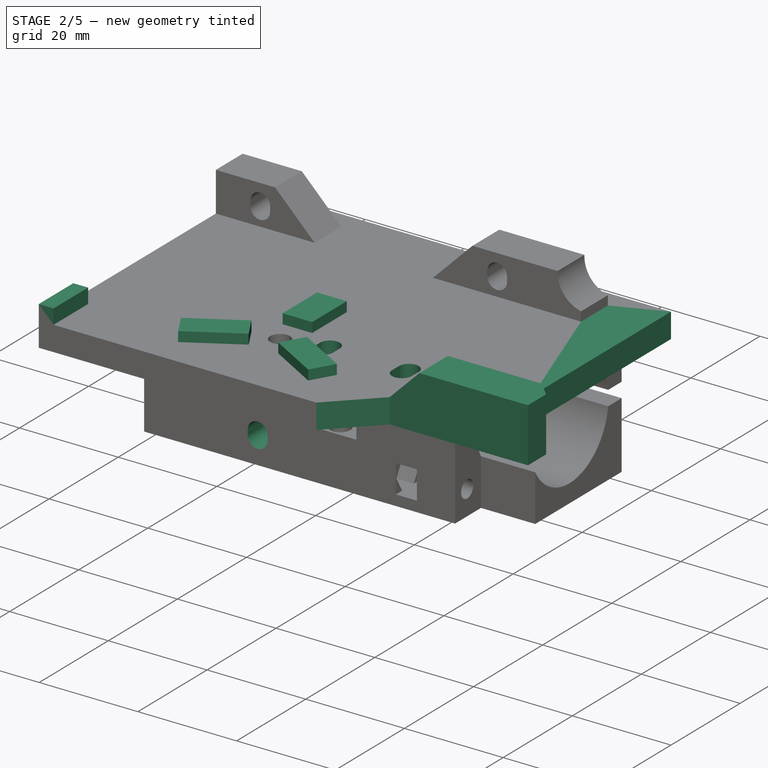
[diagram: stage 2 of 5 — iso view after this stage's code; geometry added in this stage tinted green]
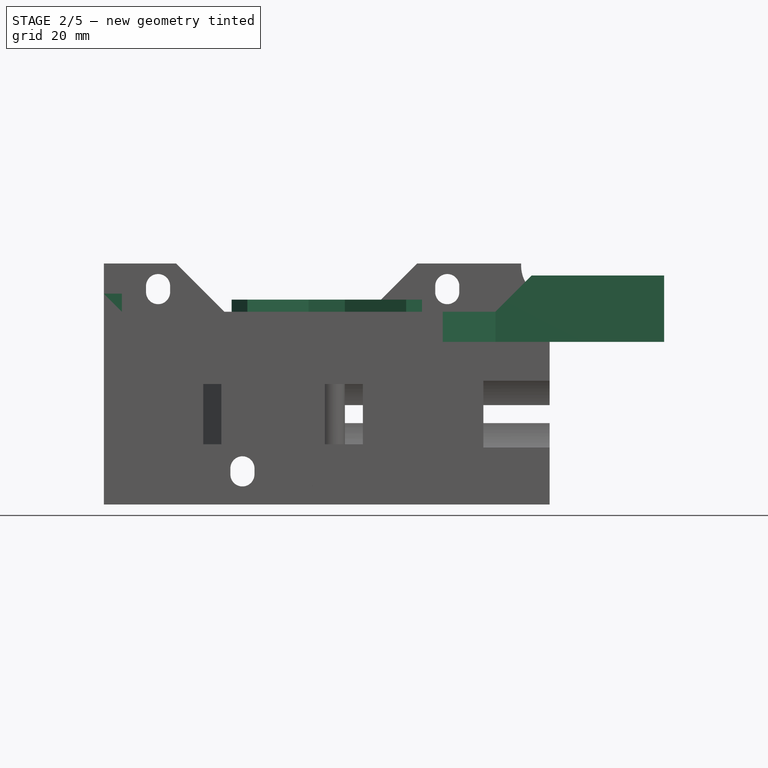
[diagram: stage 2 of 5 — front view after this stage's code; geometry added in this stage tinted green]
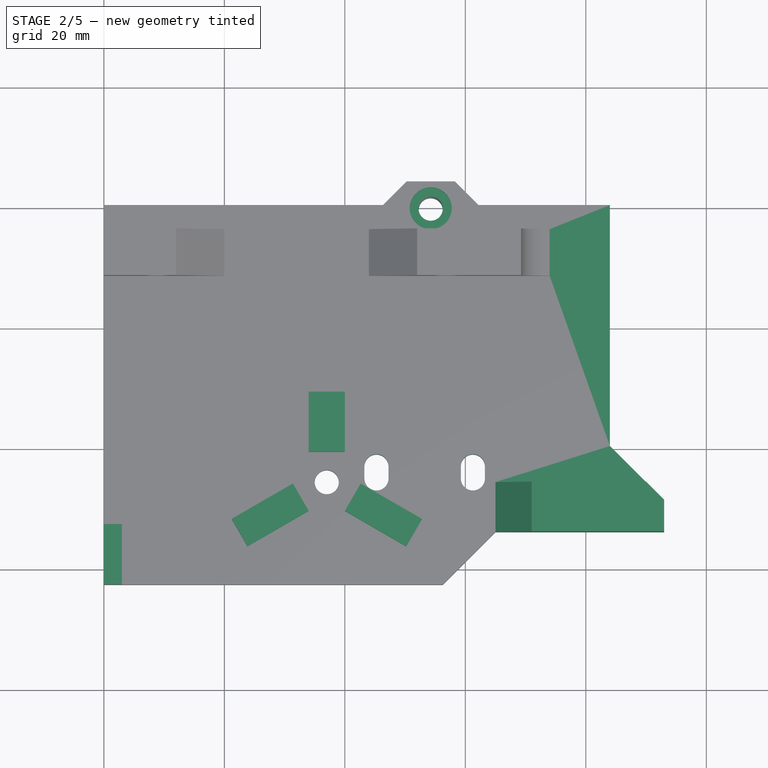
[diagram: stage 2 of 5 — top view after this stage's code; geometry added in this stage tinted green]
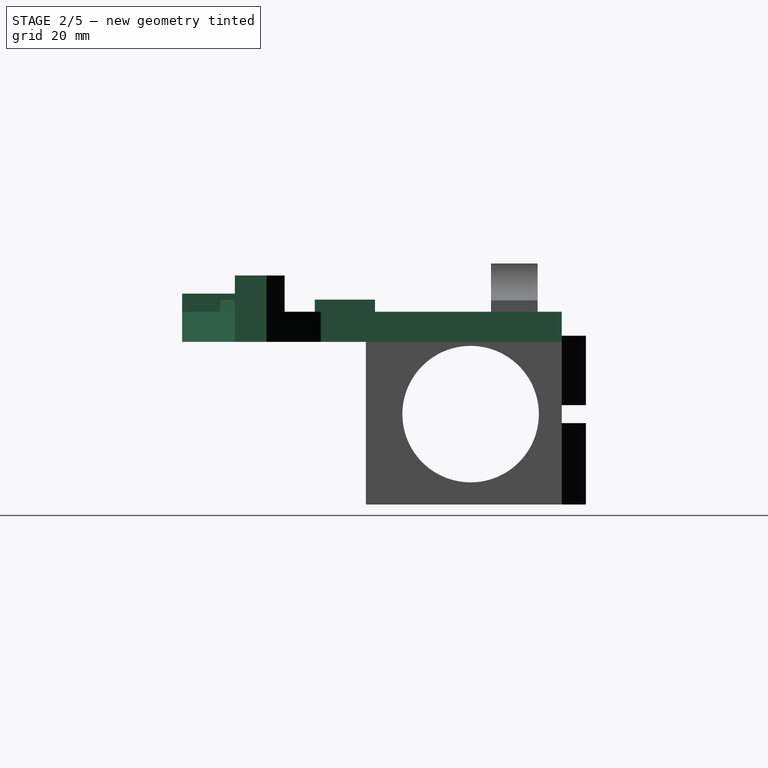
[diagram: stage 2 of 5 — right view after this stage's code; geometry added in this stage tinted green]
FEATURE [Sketcher::SketchObject] Sketch046
  MapMode = 5
  Placement = pos=(9.077e-13,-9.243e-13,-8) rot=(0,0,-1;1.5708rad)
  Support = -> [Pocket011]
  sketch-geometry (1):
    g0: Circle CenterX=0.5 CenterY=54.25 CenterZ=0 NormalX=0 NormalY=0 NormalZ=1 AngleXU=0 Radius=3.5
  constraints (3):
    c: DistanceX(g0) = 0.5
    c: DistanceY(g0) = 54.25
    c: Radius(g0) = 3.5
FEATURE [PartDesign::Pocket] Pocket012
  BaseFeature = -> Pocket011
  Length = 6
  Length2 = 100
  Placement = pos=(0,0,0) rot=(0.57735,0.57735,0.57735;2.0944rad)
  Profile = -> Sketch046
  Refine = true
  Type = 0
FEATURE [PartDesign::Pocket] Pocket013
  BaseFeature = -> Pocket012
  Length = 12
  Length2 = 100
  Placement = pos=(0,0,0) rot=(0.57735,0.57735,0.57735;2.0944rad)
  Profile = -> Sketch016
  Refine = true
  Type = 0
FEATURE [PartDesign::Pad] Pad001
  BaseFeature = -> Pocket013
  Length = 2
  Length2 = 100
  Placement = pos=(0,0,0) rot=(0.57735,0.57735,0.57735;2.0944rad)
  Profile = -> Sketch019
  Refine = true
  Type = 0
FEATURE [PartDesign::Pocket] Pocket014
  BaseFeature = -> Pad001
  Length = 20
  Length2 = 100
  Midplane = true
  Placement = pos=(0,0,0) rot=(0.57735,0.57735,0.57735;2.0944rad)
  Profile = -> Sketch020
  Refine = true
  Type = 0
FEATURE [Sketcher::SketchObject] Sketch047
  MapMode = 5
  Placement = pos=(4.5164e-12,-4.512e-12,-40) rot=(0.707107,0.707107,0;3.14159rad)
  Support = -> [Pocket014]
  sketch-geometry (6):
    g0: Circle [constr] CenterX=-27.25 CenterY=36.5 CenterZ=0 NormalX=0 NormalY=0 NormalZ=1 AngleXU=0 Radius=5
    g1: ArcOfCircle CenterX=-27.25 CenterY=36.5 CenterZ=0 NormalX=0 NormalY=0 NormalZ=1 AngleXU=0 Radius=5 StartAngle=3.14159 EndAngle=6.28319
    g2: ArcOfCircle [constr] CenterX=-27.25 CenterY=40 CenterZ=0 NormalX=0 NormalY=0 NormalZ=1 AngleXU=0 Radius=5 StartAngle=5e-16 EndAngle=3.14159
    g3: LineSegment StartX=-22.25 StartY=36.5 StartZ=0 EndX=-22.25 EndY=40 EndZ=0
    g4: LineSegment StartX=-32.25 StartY=36.5 StartZ=0 EndX=-32.25 EndY=40 EndZ=0
    g5: LineSegment StartX=-32.25 StartY=40 StartZ=0 EndX=-22.25 EndY=40 EndZ=0
  constraints (14):
    c: DistanceX(g0) = -27.25
    c: DistanceY(g0) = 36.5
    c: Radius(g0) = 5
    c: Tangent(g1,g4) = 1.5708
    c: Tangent(g1,g3) = -1.5708
    c: Tangent(g3,g2) = -1.5708
    c: Tangent(g4,g2) = 1.5708
    c: Vertical(g3)
    c: Equal(g1,g2)
    c: Coincident(g1,g0)
    c: Equal(g2,g0)
    c: DistanceY(g3,g3) = 3.5
    c: Coincident(g5,g4)
    c: Coincident(g5,g3)
FEATURE [PartDesign::Pad] Pad002
  BaseFeature = -> Pocket014
  Length = 5
  Length2 = 100
  Placement = pos=(0,0,0) rot=(0.57735,0.57735,0.57735;2.0944rad)
  Profile = -> Sketch047
  Refine = true
  Reversed = true
  Type = 0
FEATURE [PartDesign::Pocket] Pocket015
  BaseFeature = -> Pad002
  Length = 9
  Length2 = 100
  Placement = pos=(0,0,0) rot=(0.57735,0.57735,0.57735;2.0944rad)
  Profile = -> Sketch022
  Refine = true
  Type = 0
FEATURE [PartDesign::Pocket] Pocket016
  BaseFeature = -> Pocket015
  Length = 0.75
  Length2 = 100
  Placement = pos=(0,0,0) rot=(0.57735,0.57735,0.57735;2.0944rad)
  Profile = -> Sketch031
  Refine = true
  Type = 0
FEATURE [PartDesign::Pad] Pad003
  BaseFeature = -> Pocket016
  Length = 3
  Length2 = 100
  Placement = pos=(0,0,0) rot=(0.57735,0.57735,0.57735;2.0944rad)
  Profile = -> Sketch023
  Refine = true
  Reversed = true
  Type = 0
FEATURE [PartDesign::Pad] Pad004
  BaseFeature = -> Pad003
  Length = 6
  Length2 = 5
  Placement = pos=(0,0,0) rot=(0.57735,0.57735,0.57735;2.0944rad)
  Profile = -> Sketch026
  Refine = true
  Type = 4
FEATURE [PartDesign::Pocket] Pocket017
  BaseFeature = -> Pad004
  Length = 6
  Length2 = 100
  Placement = pos=(0,0,0) rot=(0.57735,0.57735,0.57735;2.0944rad)
  Profile = -> Sketch038
  Refine = true
  Type = 0
FEATURE [PartDesign::Pocket] Pocket018
  BaseFeature = -> Pocket017
  Length = 5
  Length2 = 100
  Placement = pos=(0,0,0) rot=(0.57735,0.57735,0.57735;2.0944rad)
  Profile = -> Sketch035
  Refine = true
  Type = 1
FEATURE [PartDesign::Pocket] Pocket019
  BaseFeature = -> Pocket018
  Length = 8.25
  Length2 = 100
  Placement = pos=(0,0,0) rot=(0.57735,0.57735,0.57735;2.0944rad)
  Profile = -> Sketch036
  Refine = true
  Type = 0
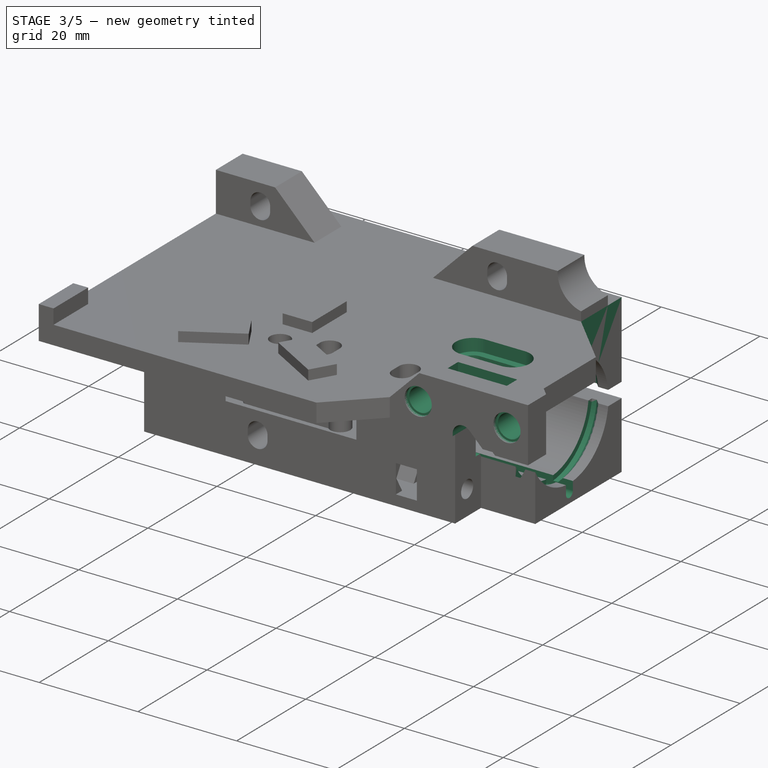
[diagram: stage 3 of 5 — iso view after this stage's code; geometry added in this stage tinted green]
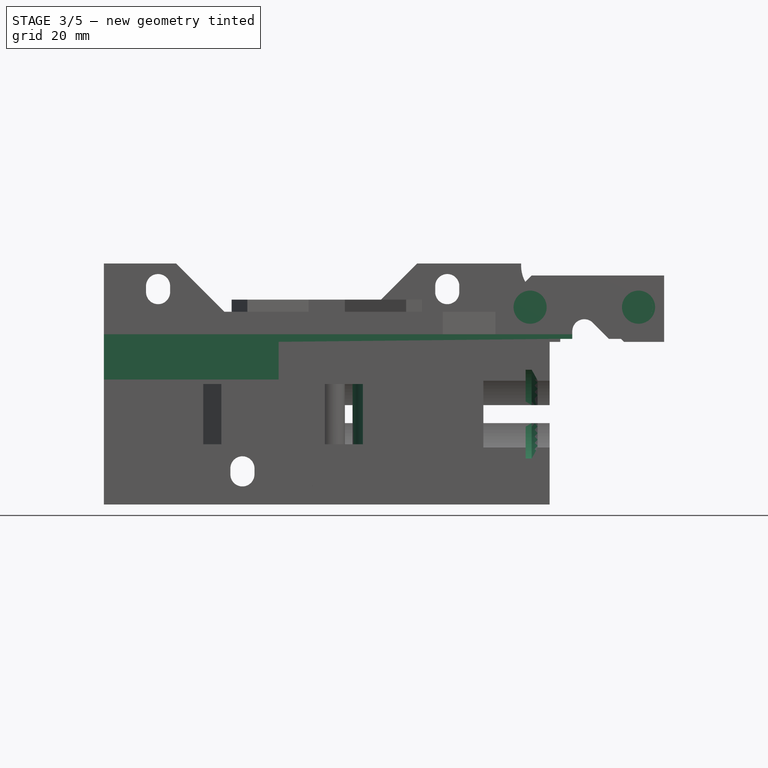
[diagram: stage 3 of 5 — front view after this stage's code; geometry added in this stage tinted green]
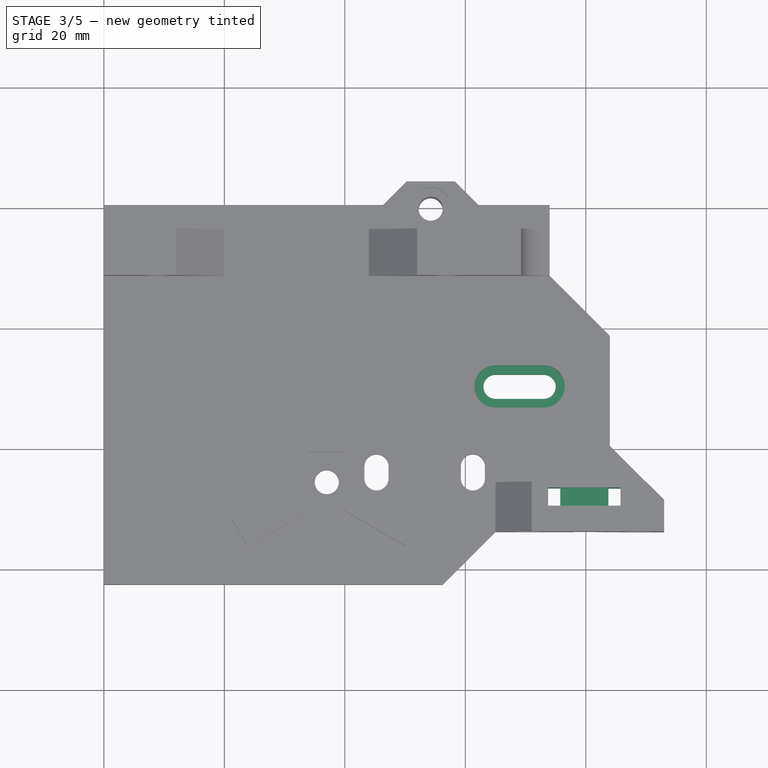
[diagram: stage 3 of 5 — top view after this stage's code; geometry added in this stage tinted green]
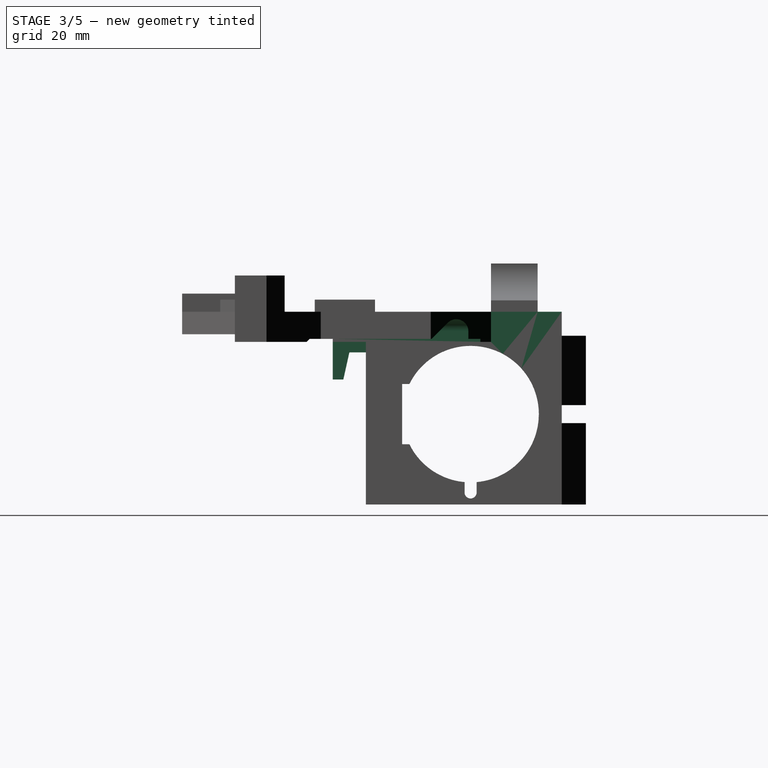
[diagram: stage 3 of 5 — right view after this stage's code; geometry added in this stage tinted green]
FEATURE [Sketcher::SketchObject] Sketch029
  MapMode = 5
  Placement = pos=(-6.1253e-12,-54.25,6.1335e-12) rot=(0.57735,0.57735,-0.57735;2.0944rad)
  Support = -> [Pocket019]
  sketch-geometry (3):
    g0: Circle CenterX=7.25 CenterY=70.75 CenterZ=0 NormalX=0 NormalY=0 NormalZ=1 AngleXU=0 Radius=2.35
    g1: LineSegment [constr] StartX=7.25 StartY=70.75 StartZ=0 EndX=7.25 EndY=88.75 EndZ=0
    g2: Circle CenterX=7.25 CenterY=88.75 CenterZ=0 NormalX=0 NormalY=0 NormalZ=1 AngleXU=0 Radius=2.35
  constraints (8):
    c: DistanceX(g0) = 7.25
    c: DistanceY(g0) = 70.75
    c: Coincident(g1,g0)
    c: Vertical(g1)
    c: Coincident(g2,g1)
    c: DistanceY(g1,g1) = 18
    c: Equal(g2,g0)
    c: Radius(g0) = 2.35
FEATURE [PartDesign::Pocket] Pocket020
  BaseFeature = -> Pocket019
  Length = 7
  Length2 = 100
  Placement = pos=(0,0,0) rot=(0.57735,0.57735,0.57735;2.0944rad)
  Profile = -> Sketch029
  Refine = true
  Type = 0
FEATURE [PartDesign::Pocket] Pocket021
  BaseFeature = -> Pocket020
  Length = 0.75
  Length2 = 100
  Placement = pos=(0,0,0) rot=(0.57735,0.57735,0.57735;2.0944rad)
  Profile = -> Sketch042
  Refine = true
  Type = 0
FEATURE [PartDesign::Pocket] Pocket022
  BaseFeature = -> Pocket021
  Length = 2
  Length2 = 100
  Placement = pos=(0,0,0) rot=(0.57735,0.57735,0.57735;2.0944rad)
  Profile = -> Sketch037
  Refine = true
  Type = 0
FEATURE [PartDesign::Pocket] Pocket023
  BaseFeature = -> Pocket022
  Length = 3
  Length2 = 100
  Placement = pos=(0,0,0) rot=(0.57735,0.57735,0.57735;2.0944rad)
  Profile = -> Sketch039
  Refine = true
  Reversed = true
  Type = 0
FEATURE [Sketcher::SketchObject] Sketch048
  MapMode = 5
  Placement = pos=(9.065e-13,-9.334e-13,-8) rot=(0,0,-1;1.5708rad)
  Support = -> [Pocket023]
  sketch-geometry (5):
    g0: Circle [constr] CenterX=30.125 CenterY=73 CenterZ=0 NormalX=0 NormalY=0 NormalZ=1 AngleXU=0 Radius=2.35
    g1: ArcOfCircle CenterX=30.125 CenterY=73 CenterZ=0 NormalX=0 NormalY=0 NormalZ=1 AngleXU=0 Radius=2 StartAngle=-3.6e-15 EndAngle=3.14159
    g2: ArcOfCircle CenterX=30.125 CenterY=65 CenterZ=0 NormalX=0 NormalY=0 NormalZ=1 AngleXU=0 Radius=2 StartAngle=3.14159 EndAngle=6.28319
    g3: LineSegment StartX=28.125 StartY=73 StartZ=0 EndX=28.125 EndY=65 EndZ=0
    g4: LineSegment StartX=32.125 StartY=73 StartZ=0 EndX=32.125 EndY=65 EndZ=0
  constraints (12):
    c: Radius(g0) = 2.35
    c: Tangent(g1,g4) = 1.5708
    c: Tangent(g1,g3) = -1.5708
    c: Tangent(g3,g2) = -1.5708
    c: Tangent(g4,g2) = 1.5708
    c: Vertical(g3)
    c: Equal(g1,g2)
    c: Coincident(g1,g0)
    c: DistanceX(g1) = 30.125
    c: DistanceY(g1) = 73
    c: DistanceY(g4,g4) = 8
    c: Radius(g1) = 2
FEATURE [PartDesign::Pocket] Pocket024
  BaseFeature = -> Pocket023
  Length = 5
  Length2 = 100
  Placement = pos=(0,0,0) rot=(0.57735,0.57735,0.57735;2.0944rad)
  Profile = -> Sketch048
  Refine = true
  Type = 0
FEATURE [Sketcher::SketchObject] Sketch049
  MapMode = 5
  Placement = pos=(9.065e-13,-9.334e-13,-8) rot=(0,0,-1;1.5708rad)
  Support = -> [Pocket024]
  sketch-geometry (4):
    g0: ArcOfCircle CenterX=30.125 CenterY=65 CenterZ=0 NormalX=0 NormalY=0 NormalZ=1 AngleXU=0 Radius=3.5 StartAngle=3.14159 EndAngle=6.28319
    g1: ArcOfCircle CenterX=30.125 CenterY=73 CenterZ=0 NormalX=0 NormalY=0 NormalZ=1 AngleXU=0 Radius=3.5 StartAngle=1.3e-15 EndAngle=3.14159
    g2: LineSegment StartX=33.625 StartY=65 StartZ=0 EndX=33.625 EndY=73 EndZ=0
    g3: LineSegment StartX=26.625 StartY=65 StartZ=0 EndX=26.625 EndY=73 EndZ=0
  constraints (10):
    c: Tangent(g0,g3) = 1.5708
    c: Tangent(g0,g2) = -1.5708
    c: Tangent(g2,g1) = -1.5708
    c: Tangent(g3,g1) = 1.5708
    c: Vertical(g2)
    c: Equal(g0,g1)
    c: Radius(g0) = 3.5
    c: DistanceY(g2,g2) = 8
    c: DistanceX(g0) = 30.125
    c: DistanceY(g0) = 65
FEATURE [PartDesign::Pocket] Pocket025
  BaseFeature = -> Pocket024
  Length = 2.5
  Length2 = 100
  Placement = pos=(0,0,0) rot=(0.57735,0.57735,0.57735;2.0944rad)
  Profile = -> Sketch049
  Refine = true
  Type = 0
FEATURE [Sketcher::SketchObject] Sketch051
  MapMode = 5
  Placement = pos=(-1.1e-15,0,0) rot=(0.57735,0.57735,-0.57735;4.18879rad)
  Support = -> [Pocket025]
  sketch-geometry (6):
    g0: LineSegment StartX=-38 StartY=12 StartZ=0 EndX=-38 EndY=19.25 EndZ=0
    g1: LineSegment StartX=-38 StartY=19.25 StartZ=0 EndX=-36.25 EndY=19.25 EndZ=0
    g2: LineSegment StartX=-36.25 StartY=19.25 StartZ=0 EndX=-35.25 EndY=14.75 EndZ=0
    g3: LineSegment StartX=-35.25 StartY=14.75 StartZ=0 EndX=-32.5 EndY=14.75 EndZ=0
    g4: LineSegment StartX=-32.5 StartY=14.75 StartZ=0 EndX=-32.5 EndY=12 EndZ=0
    g5: LineSegment StartX=-32.5 StartY=12 StartZ=0 EndX=-38 EndY=12 EndZ=0
  constraints (18):
    c: Vertical(g0)
    c: Coincident(g0,g1)
    c: Horizontal(g1)
    c: Coincident(g1,g2)
    c: Coincident(g2,g3)
    c: Horizontal(g3)
    c: Coincident(g3,g4)
    c: Vertical(g4)
    c: Coincident(g4,g5)
    c: Coincident(g5,g0)
    c: Horizontal(g5)
    c: DistanceX(g0) = -38
    c: DistanceY(g0) = 12
    c: DistanceY(g0,g0) = 7.25
    c: DistanceX(g1,g1) = 1.75
    c: DistanceX(g5,g5) = 5.5
    c: DistanceY(g4,g4) = 2.75
    c: DistanceX(g3,g3) = 2.75
FEATURE [PartDesign::Pad] Pad005
  BaseFeature = -> Pocket025
  Length = 29
  Length2 = 100
  Placement = pos=(0,0,0) rot=(0.57735,0.57735,0.57735;2.0944rad)
  Profile = -> Sketch051
  Refine = true
  Reversed = true
  Type = 0
FEATURE [Sketcher::SketchObject] Sketch052
  AttachmentOffset = pos=(0,0,1.5) rot=(0,0,1;0rad)
  MapMode = 5
  Placement = pos=(2.827e-12,-2.8395e-12,-25) rot=(0,0,-1;1.5708rad)
  Support = -> [Pad005]
  sketch-geometry (10):
    g0: LineSegment StartX=3.8 StartY=72 StartZ=0 EndX=2.8 EndY=71 EndZ=0
    g1: LineSegment StartX=2.8 StartY=71 StartZ=0 EndX=2.8 EndY=70 EndZ=0
    g2: LineSegment StartX=2.8 StartY=70 StartZ=0 EndX=3.8 EndY=70 EndZ=0
    g3: LineSegment StartX=3.8 StartY=70 StartZ=0 EndX=3.8 EndY=72 EndZ=0
    g4: LineSegment [constr] StartX=15.125 StartY=70 StartZ=0 EndX=15.125 EndY=38 EndZ=0
    g5: LineSegment StartX=3.8 StartY=38 StartZ=0 EndX=2.8 EndY=37 EndZ=0
    g6: LineSegment StartX=2.8 StartY=37 StartZ=0 EndX=2.8 EndY=36 EndZ=0
    g7: LineSegment StartX=2.8 StartY=36 StartZ=0 EndX=3.8 EndY=36 EndZ=0
    g8: LineSegment StartX=3.8 StartY=36 StartZ=0 EndX=3.8 EndY=38 EndZ=0
    g9: LineSegment [constr] StartX=26.45 StartY=70 StartZ=0 EndX=3.8 EndY=70 EndZ=0
  constraints (31):
    c: Coincident(g0,g1)
    c: Vertical(g1)
    c: Coincident(g1,g2)
    c: Horizontal(g2)
    c: Coincident(g2,g3)
    c: Coincident(g3,g0)
    c: Vertical(g3)
    c: Angle(g0) = -2.35619
    c: DistanceY(g1,g1) = 1
    c: DistanceX(g2,g2) = 1
    c: Vertical(g4)
    c: DistanceY(g4,g4) = 32
    c: PointOnObject(g4,g2)
    c: Coincident(g5,g6)
    c: Vertical(g6)
    c: Coincident(g6,g7)
    c: Horizontal(g7)
    c: Coincident(g7,g8)
    c: Coincident(g8,g5)
    c: Vertical(g8)
    c: Parallel(g0,g5) = -2.35619
    c: Equal(g1,g6) = 1
    c: Equal(g2,g7) = 1
    c: PointOnObject(g5,g3)
    c: DistanceY(g5,g4) = 0
    c: DistanceY(g2) = 70
    c: Horizontal(g9)
    c: DistanceX(g9,g9) = 22.65
    c: DistanceX(g9,g4) = 11.325
    c: Coincident(g2,g9)
    c: DistanceX(g4) = 15.125
FEATURE [PartDesign::Groove] Groove
  Angle = 360
  Axis = (-32,3.6113e-12,-3.8174e-12)
  Base = (70,-15.125,-25)
  BaseFeature = -> Pad005
  Placement = pos=(0,0,0) rot=(0.57735,0.57735,0.57735;2.0944rad)
  Profile = -> Sketch052
  ReferenceAxis = -> Sketch052 [Axis0]
  Refine = true
FEATURE [Sketcher::SketchObject] Sketch053
  MapMode = 5
  Placement = pos=(-6.1253e-12,-54.25,6.1335e-12) rot=(0.57735,0.57735,-0.57735;2.0944rad)
  Support = -> [Pocket025]
  sketch-geometry (10):
    g0: ArcOfCircle CenterX=11.25 CenterY=79.75 CenterZ=0 NormalX=0 NormalY=0 NormalZ=1 AngleXU=0 Radius=2 StartAngle=2.35619 EndAngle=4.71239
    g1: LineSegment StartX=12.5 StartY=83.8284 StartZ=0 EndX=9.83579 EndY=81.1642 EndZ=0
    g2: LineSegment StartX=12.5 StartY=77.75 StartZ=0 EndX=11.25 EndY=77.75 EndZ=0
    g3: GeomPoint X=9.25 Y=79.75 Z=0
    g4: LineSegment [constr] StartX=12.5 StartY=83.8284 StartZ=0 EndX=12.5 EndY=77.75 EndZ=0
    g5: LineSegment StartX=13 StartY=86.3284 StartZ=0 EndX=13 EndY=75.75 EndZ=0
    g6: LineSegment StartX=12.5 StartY=83.8284 StartZ=0 EndX=12.5 EndY=85.8284 EndZ=0
    g7: LineSegment StartX=12.5 StartY=85.8284 StartZ=0 EndX=13 EndY=86.3284 EndZ=0
    g8: LineSegment StartX=12.5 StartY=77.75 StartZ=0 EndX=12.5 EndY=75.75 EndZ=0
    g9: LineSegment StartX=12.5 StartY=75.75 StartZ=0 EndX=13 EndY=75.75 EndZ=0
  constraints (27):
    c: Tangent(g1,g0) = -1.5708
    c: Tangent(g2,g0) = 1.5708
    c: Angle(g1) = -2.35619
    c: Horizontal(g2)
    c: PointOnObject(g3,g0)
    c: Horizontal(g3,g0)
    c: Coincident(g4,g1)
    c: Coincident(g4,g2)
    c: Vertical(g4)
    c: DistanceX(g3,g2) = 3.25
    c: Vertical(g5)
    c: DistanceX(g5) = 13
    c: Coincident(g1,g6)
    c: Vertical(g6)
    c: Coincident(g6,g7)
    c: Coincident(g5,g7)
    c: Angle(g7) = 0.785398
    c: Radius(g0) = 2
    c: DistanceX(g0) = 11.25
    c: DistanceY(g0) = 79.75
    c: Coincident(g2,g8)
    c: Vertical(g8)
    c: Coincident(g8,g9)
    c: Coincident(g9,g5)
    c: Horizontal(g9)
    c: DistanceY(g8,g8) = 2
    c: DistanceY(g6,g6) = 2
FEATURE [PartDesign::Pocket] Pocket026
  BaseFeature = -> Groove
  Length = 5
  Length2 = 100
  Placement = pos=(0,0,0) rot=(0.57735,0.57735,0.57735;2.0944rad)
  Profile = -> Sketch053
  Refine = true
  Type = 1
FEATURE [Sketcher::SketchObject] Sketch054
  MapMode = 5
  Placement = pos=(-2.3e-15,0,0) rot=(0.57735,0.57735,-0.57735;4.18879rad)
  Support = -> [Pocket026]
  sketch-geometry (4):
    g0: LineSegment StartX=-25 StartY=30 StartZ=0 EndX=-26.5 EndY=30 EndZ=0
    g1: LineSegment StartX=-26.5 StartY=30 StartZ=0 EndX=-26.5 EndY=20 EndZ=0
    g2: LineSegment StartX=-26.5 StartY=20 StartZ=0 EndX=-25 EndY=20 EndZ=0
    g3: LineSegment StartX=-25 StartY=20 StartZ=0 EndX=-25 EndY=30 EndZ=0
  constraints (12):
    c: Coincident(g0,g1)
    c: Coincident(g1,g2)
    c: Coincident(g2,g3)
    c: Coincident(g3,g0)
    c: Horizontal(g0)
    c: Horizontal(g2)
    c: Vertical(g1)
    c: Vertical(g3)
    c: DistanceX(g0) = -26.5
    c: DistanceY(g0) = 30
    c: DistanceX(g0,g0) = 1.5
    c: DistanceY(g1,g1) = 10
FEATURE [PartDesign::Pocket] Pocket027
  BaseFeature = -> Pocket026
  Length = 5
  Length2 = 100
  Placement = pos=(0,0,0) rot=(0.57735,0.57735,0.57735;2.0944rad)
  Profile = -> Sketch054
  Refine = true
  Type = 1
FEATURE [Sketcher::SketchObject] Sketch055
  MapMode = 5
  Placement = pos=(1.459e-12,-1.5044e-12,-13) rot=(0.707107,0.707107,0;3.14159rad)
  Support = -> [Pocket027]
  sketch-geometry (4):
    g0: LineSegment StartX=-38 StartY=0 StartZ=0 EndX=-63 EndY=0 EndZ=0
    g1: LineSegment StartX=-63 StartY=0 StartZ=0 EndX=-63 EndY=78 EndZ=0
    g2: LineSegment StartX=-63 StartY=78 StartZ=0 EndX=-38 EndY=78 EndZ=0
    g3: LineSegment StartX=-38 StartY=78 StartZ=0 EndX=-38 EndY=0 EndZ=0
  constraints (12):
    c: Coincident(g0,g1)
    c: Coincident(g1,g2)
    c: Coincident(g2,g3)
    c: Coincident(g3,g0)
    c: Horizontal(g0)
    c: Horizontal(g2)
    c: Vertical(g1)
    c: Vertical(g3)
    c: PointOnObject(g0,g-1)
    c: DistanceX(g0,g0) = 25
    c: DistanceX(g0) = -38
    c: DistanceY(g3,g3) = 78
FEATURE [PartDesign::Pocket] Pocket028
  BaseFeature = -> Pocket027
  Length = 1.25
  Length2 = 100
  Placement = pos=(0,0,0) rot=(0.57735,0.57735,0.57735;2.0944rad)
  Profile = -> Sketch055
  Refine = true
  Type = 0
FEATURE [Sketcher::SketchObject] Sketch056
  MapMode = 5
  Placement = pos=(9.065e-13,-9.334e-13,-8) rot=(0,0,-1;1.5708rad)
  Support = -> [Pocket028]
  sketch-geometry (4):
    g0: LineSegment StartX=0 StartY=84 StartZ=0 EndX=21.75 EndY=84 EndZ=0
    g1: LineSegment StartX=21.75 StartY=84 StartZ=0 EndX=11.75 EndY=74 EndZ=0
    g2: LineSegment StartX=11.75 StartY=74 StartZ=0 EndX=0 EndY=74 EndZ=0
    g3: LineSegment StartX=0 StartY=74 StartZ=0 EndX=0 EndY=84 EndZ=0
  constraints (12):
    c: Coincident(g0,g1)
    c: Coincident(g1,g2)
    c: Coincident(g2,g3)
    c: Coincident(g3,g0)
    c: Horizontal(g0)
    c: Horizontal(g2)
    c: Vertical(g3)
    c: PointOnObject(g0,g-2)
    c: DistanceY(g2) = 74
    c: DistanceY(g3,g3) = 10
    c: DistanceX(g1) = 11.75
    c: Angle(g1) = -2.35619
FEATURE [PartDesign::Pocket] Pocket029
  BaseFeature = -> Pocket028
  Length = 5
  Length2 = 100
  Placement = pos=(0,0,0) rot=(0.57735,0.57735,0.57735;2.0944rad)
  Profile = -> Sketch056
  Refine = true
  Type = 0
FEATURE [PartDesign::Pocket] Pocket030
  BaseFeature = -> Pocket029
  Length = 5
  Length2 = 100
  Placement = pos=(0,0,0) rot=(0.57735,0.57735,0.57735;2.0944rad)
  Profile = -> Sketch057
  Refine = true
  Type = 1
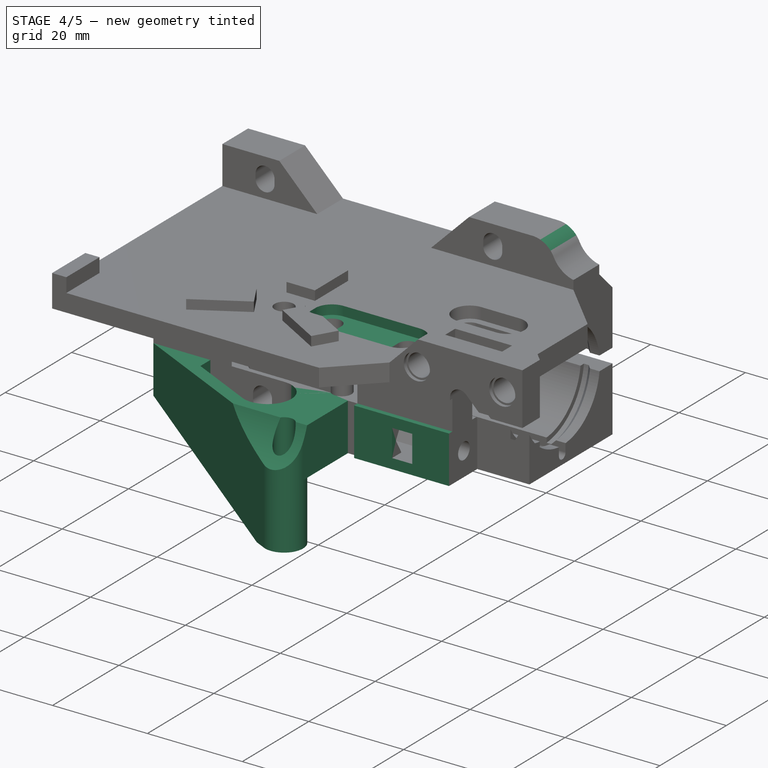
[diagram: stage 4 of 5 — iso view after this stage's code; geometry added in this stage tinted green]
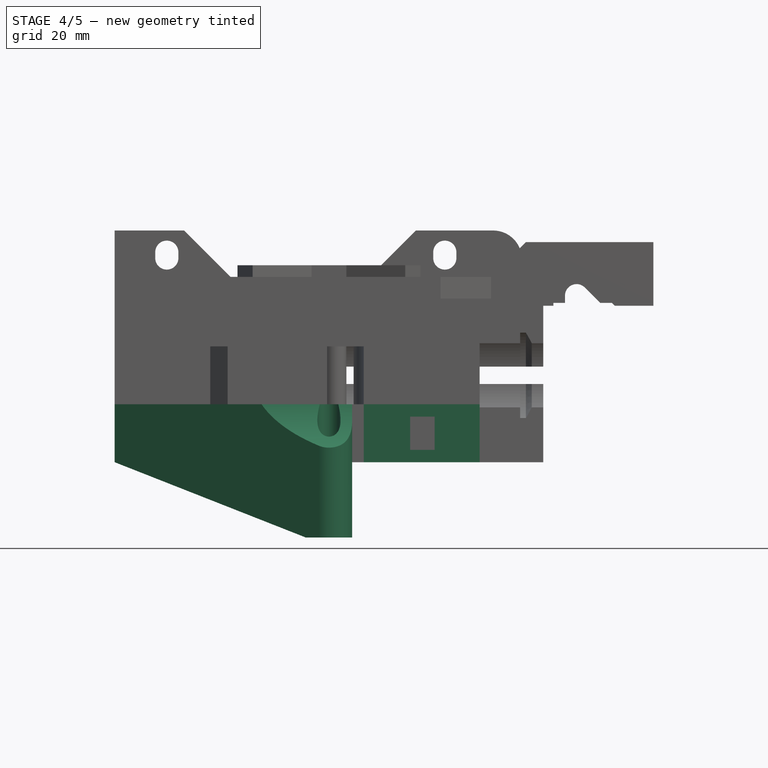
[diagram: stage 4 of 5 — front view after this stage's code; geometry added in this stage tinted green]
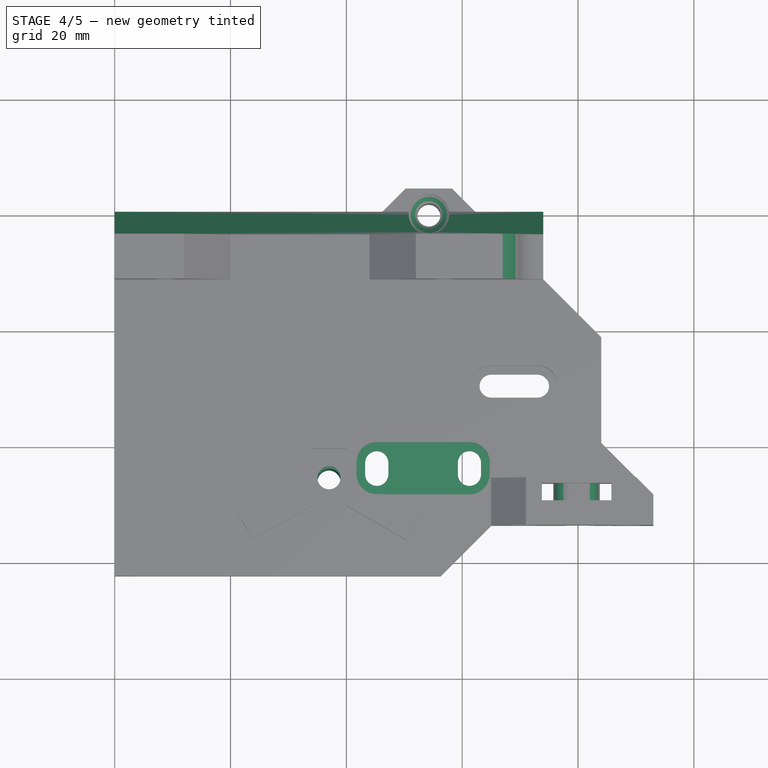
[diagram: stage 4 of 5 — top view after this stage's code; geometry added in this stage tinted green]
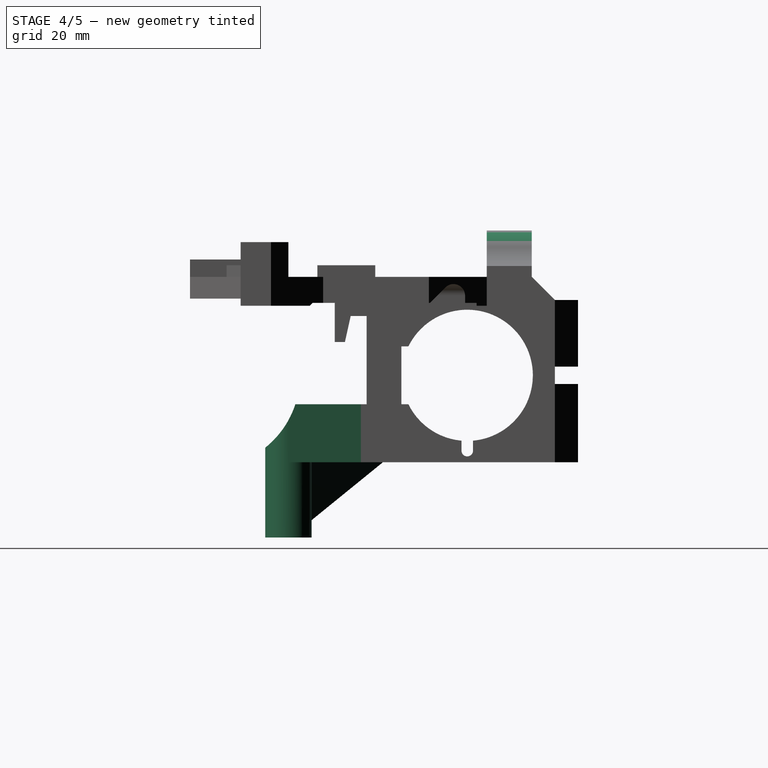
[diagram: stage 4 of 5 — right view after this stage's code; geometry added in this stage tinted green]
FEATURE [PartDesign::Pad] Pad006
  BaseFeature = -> Pocket030
  Length = 1
  Length2 = 100
  Placement = pos=(0,0,0) rot=(0.57735,0.57735,0.57735;2.0944rad)
  Profile = -> Sketch058
  Refine = true
  Type = 0
FEATURE [PartDesign::Pocket] Pocket031
  BaseFeature = -> Pad006
  Length = 6
  Length2 = 100
  Placement = pos=(0,0,0) rot=(0.57735,0.57735,0.57735;2.0944rad)
  Profile = -> Sketch059
  Refine = true
  Type = 0
FEATURE [PartDesign::Pocket] Pocket032
  BaseFeature = -> Pocket031
  Length = 0.75
  Length2 = 100
  Placement = pos=(0,0,0) rot=(0.57735,0.57735,0.57735;2.0944rad)
  Profile = -> Sketch060
  Refine = true
  Type = 0
FEATURE [PartDesign::Pad] Pad007
  BaseFeature = -> Pocket032
  Length = 10
  Length2 = 100
  Placement = pos=(0,0,0) rot=(0.57735,0.57735,0.57735;2.0944rad)
  Profile = -> Sketch061
  Refine = true
  Reversed = true
  Type = 0
FEATURE [PartDesign::Pad] Pad008
  BaseFeature = -> Pad007
  Length = 13
  Length2 = 100
  Placement = pos=(0,0,0) rot=(0.57735,0.57735,0.57735;2.0944rad)
  Profile = -> Sketch062
  Refine = true
  Type = 0
FEATURE [PartDesign::Pocket] Pocket033
  BaseFeature = -> Pad008
  Length = 5
  Length2 = 100
  Placement = pos=(0,0,0) rot=(0.57735,0.57735,0.57735;2.0944rad)
  Profile = -> Sketch063
  Refine = true
  Type = 1
FEATURE [Sketcher::SketchObject] Sketch064
  MapMode = 5
  Placement = pos=(41,-4.6272e-12,4.6855e-12) rot=(0.57735,0.57735,0.57735;2.0944rad)
  Support = -> [Pocket033]
  sketch-geometry (4):
    g0: Circle [constr] CenterX=-60 CenterY=-25 CenterZ=0 NormalX=0 NormalY=0 NormalZ=1 AngleXU=0 Radius=16
    g1: ArcOfCircle CenterX=-60 CenterY=-25 CenterZ=0 NormalX=0 NormalY=0 NormalZ=1 AngleXU=0 Radius=16 StartAngle=5.38752 EndAngle=5.96602
    g2: LineSegment StartX=-44.798 StartY=-29.99 StartZ=0 EndX=-50 EndY=-29.99 EndZ=0
    g3: LineSegment StartX=-50 StartY=-29.99 StartZ=0 EndX=-50 EndY=-37.49 EndZ=0
  constraints (12):
    c: DistanceX(g0) = -60
    c: DistanceY(g0) = -25
    c: Coincident(g1,g0)
    c: Horizontal(g2)
    c: Coincident(g2,g3)
    c: Coincident(g3,g1)
    c: DistanceX(g1) = -50
    c: Coincident(g1,g2)
    c: Vertical(g3)
    c: Radius(g1) = 16
    c: DistanceY(g3,g3) = 7.5
    c: Equal(g1,g0)
FEATURE [PartDesign::Pocket] Pocket034
  BaseFeature = -> Pocket033
  Length = 5
  Length2 = 100
  Placement = pos=(0,0,0) rot=(0.57735,0.57735,0.57735;2.0944rad)
  Profile = -> Sketch064
  Refine = true
  Type = 1
FEATURE [Sketcher::SketchObject] Sketch065
  ExternalGeometry = -> [Pocket034]
  MapMode = 5
  Placement = pos=(9.065e-13,-9.334e-13,-8) rot=(0,0,-1;1.5708rad)
  Support = -> [Pocket034]
  sketch-geometry (14):
    g0: LineSegment [constr] StartX=43.375 StartY=61.25 StartZ=0 EndX=45.375 EndY=61.25 EndZ=0
    g1: LineSegment [constr] StartX=45.375 StartY=61.25 StartZ=0 EndX=45.375 EndY=45.25 EndZ=0
    g2: LineSegment [constr] StartX=45.375 StartY=45.25 StartZ=0 EndX=43.375 EndY=45.25 EndZ=0
    g3: LineSegment [constr] StartX=43.375 StartY=45.25 StartZ=0 EndX=43.375 EndY=61.25 EndZ=0
    g4: ArcOfCircle CenterX=43.375 CenterY=61.25 CenterZ=0 NormalX=0 NormalY=0 NormalZ=1 AngleXU=0 Radius=3.5 StartAngle=1.5708 EndAngle=3.14159
    g5: ArcOfCircle CenterX=45.375 CenterY=61.25 CenterZ=0 NormalX=0 NormalY=0 NormalZ=1 AngleXU=0 Radius=3.5 StartAngle=6.28319 EndAngle=7.85398
    g6: ArcOfCircle CenterX=43.375 CenterY=45.25 CenterZ=0 NormalX=0 NormalY=0 NormalZ=1 AngleXU=0 Radius=3.5 StartAngle=3.14159 EndAngle=4.71239
    g7: ArcOfCircle CenterX=45.375 CenterY=45.25 CenterZ=0 NormalX=0 NormalY=0 NormalZ=1 AngleXU=0 Radius=3.5 StartAngle=4.71239 EndAngle=6.28319
    g8: LineSegment [constr] StartX=39.875 StartY=61.25 StartZ=0 EndX=48.875 EndY=61.25 EndZ=0
    g9: LineSegment StartX=48.875 StartY=61.25 StartZ=0 EndX=48.875 EndY=45.25 EndZ=0
    g10: LineSegment [constr] StartX=48.875 StartY=45.25 StartZ=0 EndX=39.875 EndY=45.25 EndZ=0
    g11: LineSegment StartX=39.875 StartY=45.25 StartZ=0 EndX=39.875 EndY=61.25 EndZ=0
    g12: LineSegment StartX=43.375 StartY=64.75 StartZ=0 EndX=45.375 EndY=64.75 EndZ=0
    g13: LineSegment StartX=43.375 StartY=41.75 StartZ=0 EndX=45.375 EndY=41.75 EndZ=0
  constraints (36):
    c: Coincident(g0,g1)
    c: Coincident(g1,g2)
    c: Coincident(g2,g3)
    c: Coincident(g3,g0)
    c: Horizontal(g0)
    c: Horizontal(g2)
    c: Vertical(g1)
    c: Vertical(g3)
    c: Coincident(g0,g-3)
    c: Coincident(g1,g-4)
    c: Coincident(g4,g0)
    c: Coincident(g5,g0)
    c: Coincident(g6,g2)
    c: Coincident(g7,g1)
    c: Coincident(g8,g9)
    c: Coincident(g9,g10)
    c: Coincident(g10,g11)
    c: Coincident(g11,g8)
    c: Horizontal(g8)
    c: Horizontal(g10)
    c: Vertical(g9)
    c: Vertical(g11)
    c: Coincident(g6,g10)
    c: Coincident(g4,g8)
    c: Coincident(g5,g8)
    c: Coincident(g7,g9)
    c: Tangent(g4,g11)
    c: Tangent(g11,g6)
    c: Horizontal(g12)
    c: Coincident(g13,g6)
    c: Tangent(g13,g6)
    c: Coincident(g7,g13)
    c: Horizontal(g13)
    c: Radius(g5) = 3.5
    c: Tangent(g12,g4) = 1.5708
    c: Tangent(g5,g12) = 1.5708
FEATURE [PartDesign::Pocket] Pocket035
  BaseFeature = -> Pocket034
  Length = 4
  Length2 = 100
  Midplane = true
  Placement = pos=(0,0,0) rot=(0.57735,0.57735,0.57735;2.0944rad)
  Profile = -> Sketch065
  Refine = true
  Type = 0
FEATURE [PartDesign::Fillet] Fillet
  Base = -> Pocket035 [Edge624]
  BaseFeature = -> Pocket035
  Placement = pos=(0,0,0) rot=(0.57735,0.57735,0.57735;2.0944rad)
  Radius = 5
FEATURE [PartDesign::Chamfer] Chamfer
  Base = -> Fillet [Edge72,Edge21]
  BaseFeature = -> Fillet
  Placement = pos=(0,0,0) rot=(0.57735,0.57735,0.57735;2.0944rad)
  Size = 3.99
FEATURE [PartDesign::Chamfer] Chamfer001
  Base = -> Chamfer [Edge362]
  BaseFeature = -> Chamfer
  Placement = pos=(0,0,0) rot=(0.57735,0.57735,0.57735;2.0944rad)
  Size = 1.48
FEATURE [PartDesign::Fillet] Fillet001
  Base = -> Chamfer001 [Edge585,Edge630]
  BaseFeature = -> Chamfer001
  Placement = pos=(0,0,0) rot=(0.57735,0.57735,0.57735;2.0944rad)
  Radius = 3
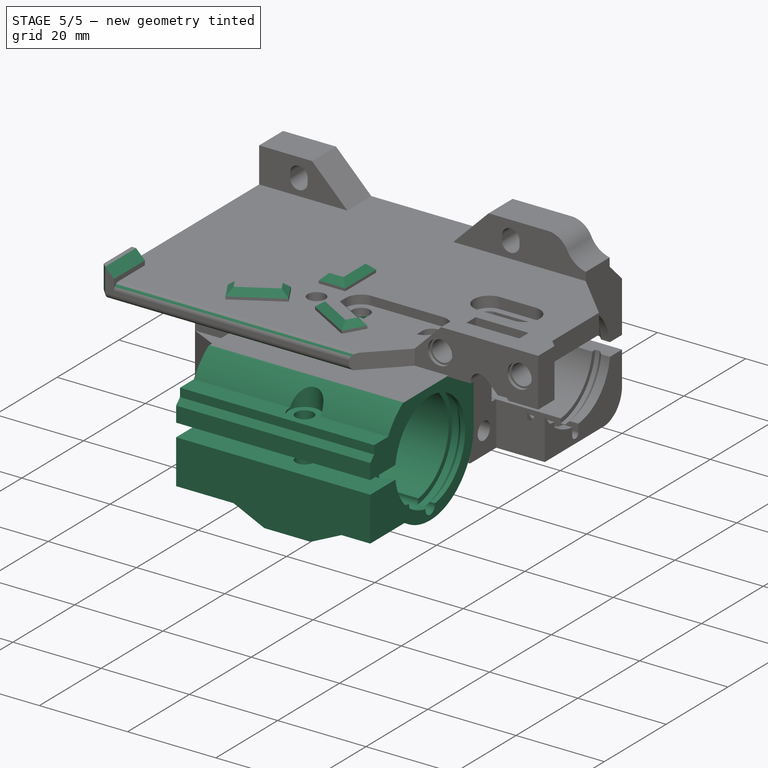
[diagram: stage 5 of 5 — iso view after this stage's code; geometry added in this stage tinted green]
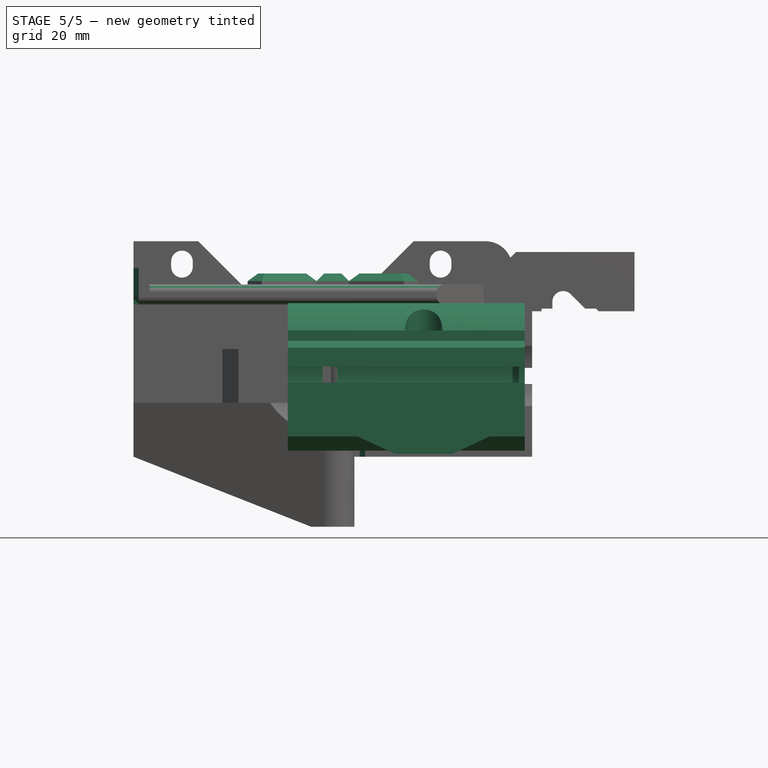
[diagram: stage 5 of 5 — front view after this stage's code; geometry added in this stage tinted green]
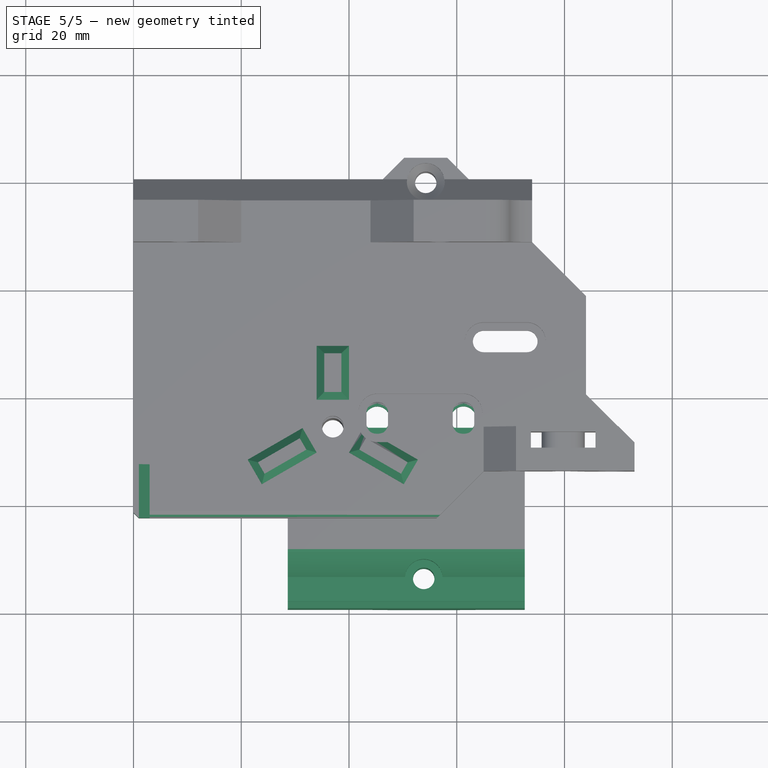
[diagram: stage 5 of 5 — top view after this stage's code; geometry added in this stage tinted green]
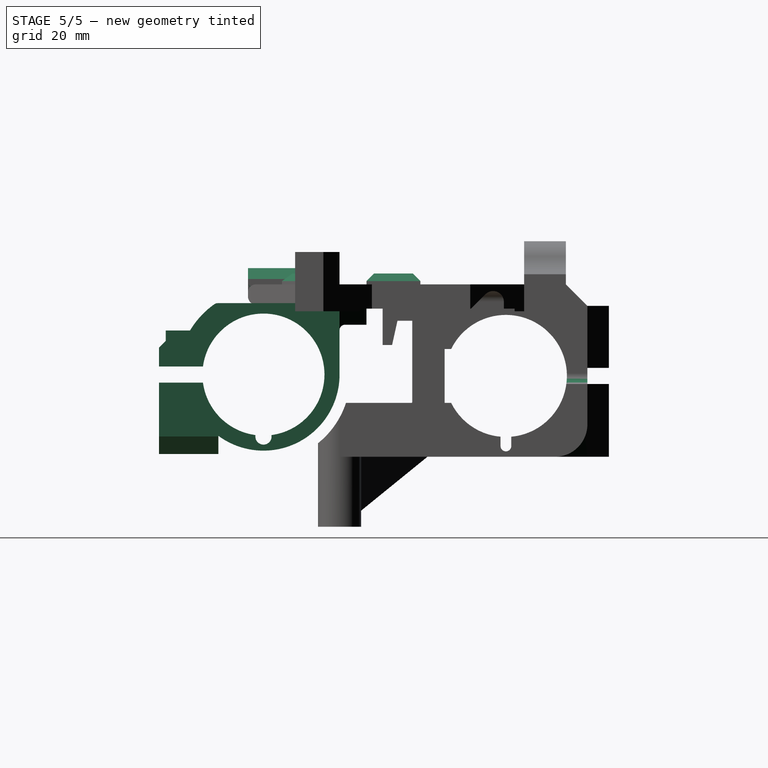
[diagram: stage 5 of 5 — right view after this stage's code; geometry added in this stage tinted green]
FEATURE [Sketcher::SketchObject] Sketch057
  MapMode = 5
  Placement = pos=(3.9e-14,0,0) rot=(0.57735,0.57735,-0.57735;4.18879rad)
  sketch-geometry (4):
    g0: ArcOfCircle CenterX=-15.125 CenterY=35 CenterZ=0 NormalX=0 NormalY=0 NormalZ=1 AngleXU=0 Radius=1 StartAngle=3.14159 EndAngle=6.28319
    g1: ArcOfCircle CenterX=-15.125 CenterY=38 CenterZ=0 NormalX=0 NormalY=0 NormalZ=1 AngleXU=0 Radius=1 StartAngle=1.3e-15 EndAngle=3.14159
    g2: LineSegment StartX=-14.125 StartY=35 StartZ=0 EndX=-14.125 EndY=38 EndZ=0
    g3: LineSegment StartX=-16.125 StartY=35 StartZ=0 EndX=-16.125 EndY=38 EndZ=0
  constraints (10):
    c: Tangent(g0,g3) = 1.5708
    c: Tangent(g0,g2) = -1.5708
    c: Tangent(g2,g1) = -1.5708
    c: Tangent(g3,g1) = 1.5708
    c: Vertical(g2)
    c: Equal(g0,g1)
    c: Radius(g1) = 1
    c: DistanceX(g0) = -15.125
    c: DistanceY(g0) = 35
    c: DistanceY(g2,g2) = 3
FEATURE [Sketcher::SketchObject] Sketch058
  MapMode = 5
  Placement = pos=(-3.652e-12,-32.5,3.713e-12) rot=(0.57735,0.57735,-0.57735;2.0944rad)
  sketch-geometry (8):
    g0: LineSegment StartX=37.875 StartY=55.25 StartZ=0 EndX=32.125 EndY=55.25 EndZ=0
    g1: LineSegment StartX=32.125 StartY=55.25 StartZ=0 EndX=32.125 EndY=51 EndZ=0
    g2: LineSegment StartX=32.125 StartY=51 StartZ=0 EndX=37.875 EndY=51 EndZ=0
    g3: LineSegment StartX=37.875 StartY=51 StartZ=0 EndX=37.875 EndY=55.25 EndZ=0
    g4: LineSegment StartX=30 StartY=63 StartZ=0 EndX=40 EndY=63 EndZ=0
    g5: LineSegment StartX=40 StartY=63 StartZ=0 EndX=40 EndY=43 EndZ=0
    g6: LineSegment StartX=40 StartY=43 StartZ=0 EndX=30 EndY=43 EndZ=0
    g7: LineSegment StartX=30 StartY=43 StartZ=0 EndX=30 EndY=63 EndZ=0
  constraints (16):
    c: Coincident(g0,g1)
    c: Coincident(g1,g2)
    c: Coincident(g2,g3)
    c: Coincident(g3,g0)
    c: Horizontal(g0)
    c: Horizontal(g2)
    c: Vertical(g1)
    c: Vertical(g3)
    c: Coincident(g4,g5)
    c: Coincident(g5,g6)
    c: Coincident(g6,g7)
    c: Coincident(g7,g4)
    c: Horizontal(g4)
    c: Horizontal(g6)
    c: Vertical(g5)
    c: Vertical(g7)
FEATURE [Sketcher::SketchObject] Sketch059
  MapMode = 5
  Placement = pos=(0,-7e-15,0) rot=(0.57735,0.57735,0.57735;4.18879rad)
  sketch-geometry (1):
    g0: Circle CenterX=-15 CenterY=32 CenterZ=0 NormalX=0 NormalY=0 NormalZ=1 AngleXU=0 Radius=2.35
  constraints (3):
    c: DistanceX(g0) = -15
    c: DistanceY(g0) = 32
    c: Radius(g0) = 2.35
FEATURE [Sketcher::SketchObject] Sketch060
  MapMode = 5
  Placement = pos=(0,-8e-15,0) rot=(0.57735,0.57735,0.57735;4.18879rad)
  sketch-geometry (1):
    g0: Circle CenterX=-15 CenterY=32 CenterZ=0 NormalX=0 NormalY=0 NormalZ=1 AngleXU=0 Radius=2.75
  constraints (1):
    c: Radius(g0) = 2.75
FEATURE [Sketcher::SketchObject] Sketch061
  MapMode = 5
  Placement = pos=(4.562e-12,-4.507e-12,-40) rot=(0.707107,0.707107,0;3.14159rad)
  sketch-geometry (9):
    g0: LineSegment StartX=-49.599 StartY=35.2544 StartZ=0 EndX=-32.5 EndY=0 EndZ=0
    g1: LineSegment StartX=-32.5 StartY=0 StartZ=0 EndX=-32.5 EndY=12 EndZ=0
    g2: LineSegment StartX=-32.5 StartY=12 StartZ=0 EndX=-35.5 EndY=12 EndZ=0
    g3: LineSegment StartX=-35.5 StartY=12 StartZ=0 EndX=-41.9988 EndY=25.399 EndZ=0
    g4: LineSegment StartX=-32.5 StartY=27.581 StartZ=0 EndX=-32.5 EndY=41 EndZ=0
    g5: ArcOfCircle CenterX=-46 CenterY=37 CenterZ=0 NormalX=0 NormalY=0 NormalZ=1 AngleXU=0 Radius=4 StartAngle=1.5708 EndAngle=3.59318
    g6: Circle CenterX=-46 CenterY=37 CenterZ=0 NormalX=0 NormalY=0 NormalZ=1 AngleXU=0 Radius=2
    g7: LineSegment StartX=-46 StartY=41 StartZ=0 EndX=-32.5 EndY=41 EndZ=0
    g8: ArcOfCircle CenterX=-37.5 CenterY=27.581 CenterZ=0 NormalX=0 NormalY=0 NormalZ=1 AngleXU=0 Radius=5 StartAngle=0 EndAngle=3.59318
  constraints (24):
    c: Coincident(g0,g1)
    c: Vertical(g1)
    c: PointOnObject(g0,g-1)
    c: DistanceX(g0) = -32.5
    c: Coincident(g1,g2)
    c: Horizontal(g2)
    c: Coincident(g2,g3)
    c: Vertical(g4)
    c: DistanceY(g1,g1) = 12
    c: DistanceX(g5) = -46
    c: DistanceY(g5) = 37
    c: Tangent(g0,g5) = -1.5708
    c: Radius(g5) = 4
    c: Coincident(g6,g5)
    c: Radius(g6) = 2
    c: Tangent(g5,g7) = 1.5708
    c: Coincident(g4,g7)
    c: Horizontal(g7)
    c: DistanceX(g2,g2) = 3
    c: Parallel(g0,g3)
    c: Tangent(g8,g3) = 1.5708
    c: DistanceX(g4,g-1) = 32.5
    c: Tangent(g8,g4) = -1.5708
    c: Radius(g8) = 5
FEATURE [Sketcher::SketchObject] Sketch062
  MapMode = 5
  Placement = pos=(4.564e-12,-4.53e-12,-40) rot=(0.707107,0.707107,0;3.14159rad)
  sketch-geometry (5):
    g0: ArcOfCircle CenterX=-46 CenterY=37 CenterZ=0 NormalX=0 NormalY=0 NormalZ=1 AngleXU=0 Radius=4 StartAngle=4.78967 EndAngle=9.87637
    g1: Circle CenterX=-46 CenterY=37 CenterZ=0 NormalX=0 NormalY=0 NormalZ=1 AngleXU=0 Radius=2
    g2: LineSegment StartX=-29.6798 StartY=0 StartZ=0 EndX=-45.6912 EndY=33.0119 EndZ=0
    g3: LineSegment StartX=-49.599 StartY=35.2544 StartZ=0 EndX=-32.5 EndY=0 EndZ=0
    g4: LineSegment StartX=-32.5 StartY=0 StartZ=0 EndX=-29.6798 EndY=0 EndZ=0
  constraints (7):
    c: Coincident(g1,g0)
    c: PointOnObject(g2,g-1)
    c: Coincident(g0,g2)
    c: Tangent(g0,g3) = -1.5708
    c: Coincident(g3,g4)
    c: Coincident(g4,g2)
    c: Horizontal(g4)
FEATURE [Sketcher::SketchObject] Sketch063
  MapMode = 5
  Placement = pos=(-7.171e-12,-63,6.451e-12) rot=(0.57735,0.57735,-0.57735;2.0944rad)
  sketch-geometry (3):
    g0: LineSegment StartX=40 StartY=0 StartZ=0 EndX=53 EndY=33 EndZ=0
    g1: LineSegment StartX=53 StartY=33 StartZ=0 EndX=53 EndY=0 EndZ=0
    g2: LineSegment StartX=53 StartY=0 StartZ=0 EndX=40 EndY=0 EndZ=0
  constraints (9):
    c: Coincident(g0,g1)
    c: PointOnObject(g1,g-1)
    c: Vertical(g1)
    c: Coincident(g1,g2)
    c: Coincident(g2,g0)
    c: DistanceX(g1) = 53
    c: DistanceX(g2,g2) = 13
    c: DistanceY(g1,g1) = 33
    c: Horizontal(g2)
FEATURE [Part::FeaturePython] b_x_bearing_holder_v0_2_2_001_  label="x_bearing_holder_v0.2.2_001"  # a2plus imported part (geometry in sourceFile) (typed FeaturePython)
  Placement = pos=(72.625,-79.5,-12.5) rot=(0,1,0;3.14159rad)
  a2p_Version = V0.1
  fixedPosition = true
  sourceFile = .\..\x_double_bearing_holder\x_bearing_holder_v0.2.2.FCStd
  subassemblyImport = false
  timeLastImport = 1.58595e+09
  updateColors = true
FEATURE [PartDesign::Fillet] Fillet002
  Base = -> Fillet001 [Edge544]
  BaseFeature = -> Fillet001
  Placement = pos=(0,0,0) rot=(0.57735,0.57735,0.57735;2.0944rad)
  Radius = 2
FEATURE [PartDesign::Chamfer] Chamfer002
  Base = -> Fillet002 [Edge31,Edge29,Edge27,Edge26,Edge28,Edge30]
  BaseFeature = -> Fillet002
  Placement = pos=(0,0,0) rot=(0.57735,0.57735,0.57735;2.0944rad)
  Size = 0.5
FEATURE [PartDesign::Fillet] Fillet003
  Base = -> Chamfer002 [Edge261,Edge319]
  BaseFeature = -> Chamfer002
  Placement = pos=(0,0,0) rot=(0.57735,0.57735,0.57735;2.0944rad)
  Radius = 1.5
FEATURE [PartDesign::Chamfer] Chamfer003
  Base = -> Fillet003 [Edge40]
  BaseFeature = -> Fillet003
  Placement = pos=(0,0,0) rot=(0.57735,0.57735,0.57735;2.0944rad)
  Size = 2
FEATURE [PartDesign::Chamfer] Chamfer004
  Base = -> Chamfer003 [Edge616,Edge506,Edge20]
  BaseFeature = -> Chamfer003
  Placement = pos=(0,0,0) rot=(0.57735,0.57735,0.57735;2.0944rad)
  Size = 0.99
FEATURE [PartDesign::Chamfer] Chamfer005
  Base = -> Chamfer004 [Face182,Face183,Edge390,Edge414,Edge393,Edge392]
  BaseFeature = -> Chamfer004
  Placement = pos=(0,0,0) rot=(0.57735,0.57735,0.57735;2.0944rad)
  Size = 1.4
FEATURE [Sketcher::SketchObject] Sketch066
  ExternalGeometry = -> [Chamfer005]
  MapMode = 5
  Placement = pos=(63,-9.5791e-12,7.0579e-12) rot=(0.57735,0.57735,0.57735;2.0944rad)
  Support = -> [Chamfer005]
  sketch-geometry (1):
    g0: Circle CenterX=-29 CenterY=-35 CenterZ=0 NormalX=0 NormalY=0 NormalZ=1 AngleXU=0 Radius=2
  constraints (2):
    c: Coincident(g0,g-4)
    c: Radius(g0) = 2
FEATURE [PartDesign::Pocket] Pocket036
  BaseFeature = -> Chamfer005
  Length = 8
  Length2 = 100
  Placement = pos=(0,0,0) rot=(0.57735,0.57735,0.57735;2.0944rad)
  Profile = -> Sketch066
  Refine = true
  Type = 0
FEATURE [PartDesign::Fillet] Fillet004
  Base = -> Pocket036 [Edge520]
  BaseFeature = -> Pocket036
  Placement = pos=(0,0,0) rot=(0.57735,0.57735,0.57735;2.0944rad)
  Radius = 2
FEATURE [PartDesign::Fillet] Fillet005
  Base = -> Fillet004 [Edge5,Edge49]
  BaseFeature = -> Fillet004
  Placement = pos=(0,0,0) rot=(0.57735,0.57735,0.57735;2.0944rad)
  Radius = 6
FEATURE [PartDesign::Fillet] Fillet006
  Base = -> Fillet005 [Edge130,Edge132]
  BaseFeature = -> Fillet005
  Placement = pos=(0,0,0) rot=(0.57735,0.57735,0.57735;2.0944rad)
  Radius = 2
FEATURE [Sketcher::SketchObject] Sketch067
  MapMode = 5
  Placement = pos=(55.25,-8.4968e-12,6.4957e-12) rot=(0.57735,0.57735,-0.57735;4.18879rad)
  Support = -> [Fillet006]
  sketch-geometry (7):
    g0: LineSegment StartX=-25.65 StartY=35 StartZ=0 EndX=-27.325 EndY=37.9012 EndZ=0
    g1: LineSegment StartX=-27.325 StartY=37.9012 StartZ=0 EndX=-30.675 EndY=37.9012 EndZ=0
    g2: LineSegment StartX=-30.675 StartY=37.9012 StartZ=0 EndX=-32.35 EndY=35 EndZ=0
    g3: LineSegment StartX=-32.35 StartY=35 StartZ=0 EndX=-30.675 EndY=32.0988 EndZ=0
    g4: LineSegment StartX=-30.675 StartY=32.0988 StartZ=0 EndX=-27.325 EndY=32.0988 EndZ=0
    g5: LineSegment StartX=-27.325 StartY=32.0988 StartZ=0 EndX=-25.65 EndY=35 EndZ=0
    g6: Circle [constr] CenterX=-29 CenterY=35 CenterZ=0 NormalX=0 NormalY=0 NormalZ=1 AngleXU=0 Radius=3.35
  constraints (17):
    c: Coincident(g0,g1)
    c: Coincident(g1,g2)
    c: Coincident(g2,g3)
    c: Coincident(g3,g4)
    c: Coincident(g4,g5)
    c: Coincident(g5,g0)
    c: Equal(g0, g1-g5) x5
    c: PointOnObject(g0,g6)
    c: PointOnObject(g1,g6)
    c: PointOnObject(g2,g6)
    c: PointOnObject(g3,g6)
    c: PointOnObject(g4,g6)
    c: PointOnObject(g5,g6)
    c: DistanceX(g6) = -29
    c: DistanceY(g6) = 35
    c: Horizontal(g1)
    c: Radius(g6) = 3.35
FEATURE [PartDesign::Pocket] Pocket037
  BaseFeature = -> Fillet006
  Length = 3
  Length2 = 100
  Placement = pos=(0,0,0) rot=(0.57735,0.57735,0.57735;2.0944rad)
  Profile = -> Sketch067
  Refine = true
  Type = 0
FEATURE [PartDesign::Chamfer] Chamfer006
  Base = -> Pocket037 [Edge379]
  BaseFeature = -> Pocket037
  Placement = pos=(0,0,0) rot=(0.57735,0.57735,0.57735;2.0944rad)
  Size = 0.9
FEATURE [PartDesign::Body] Body
  Group = -> [Sketch,Pad,Sketch001,Pocket,Sketch002,Pocket001,Sketch003,Sketch004,Sketch005,Sketch006,Sketch008,Sketch010,Sketch011,Sketch014,Sketch016,Sketch019,Sketch020,Sketch022,Sketch023,Sketch036,Sketch026,Sketch039,Sketch038,Sketch031,Sketch029,Sketch035,Sketch037,Sketch042,Pocket002,Pocket003,Pocket004,Pocket005,Pocket006,Pocket007,Pocket008,Sketch043,Pocket009,Pocket010,Sketch045,Pocket011,Sketch046,+69 more]
  Origin = -> Origin
  Tip = -> Chamfer006
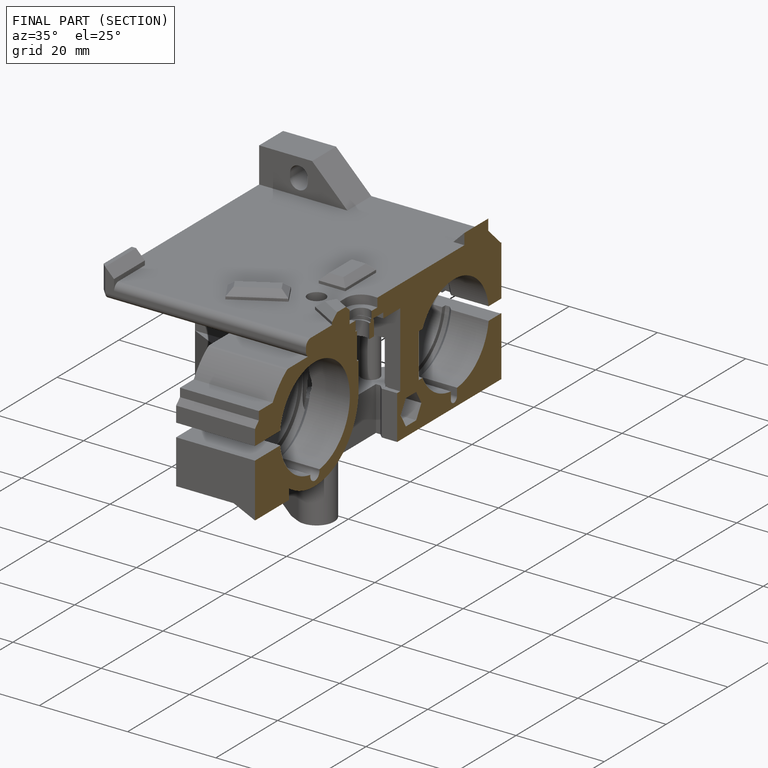
[diagram: finished part — half-section view (interior)]
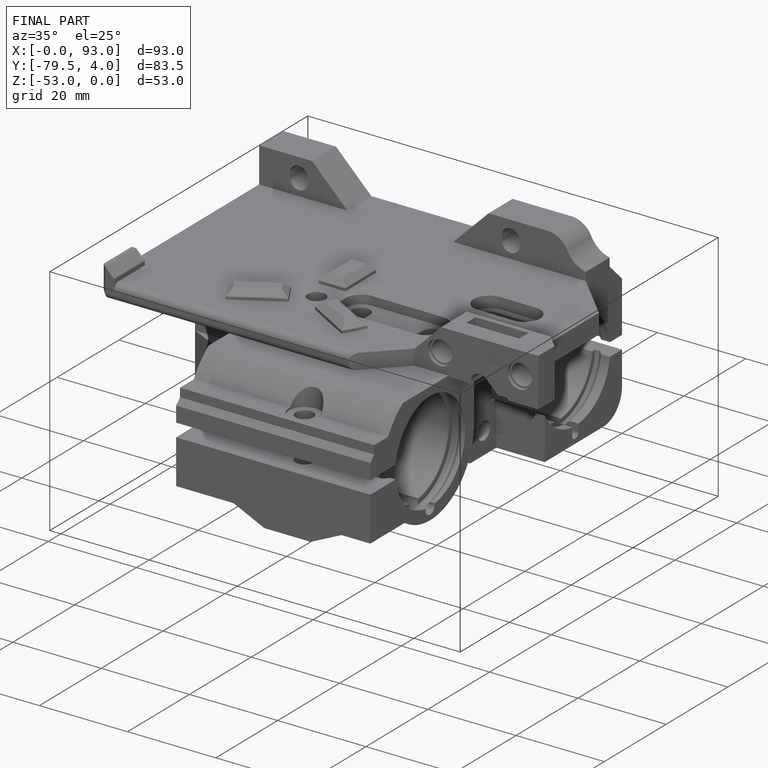
[diagram: finished part — iso view with bounding-box wireframe]
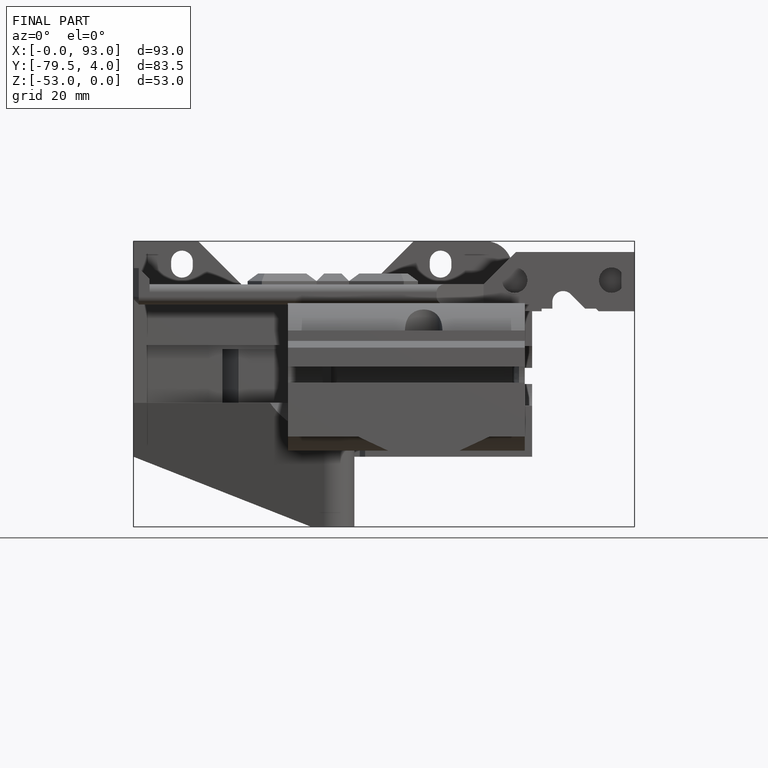
[diagram: finished part — front view with bounding-box wireframe]
